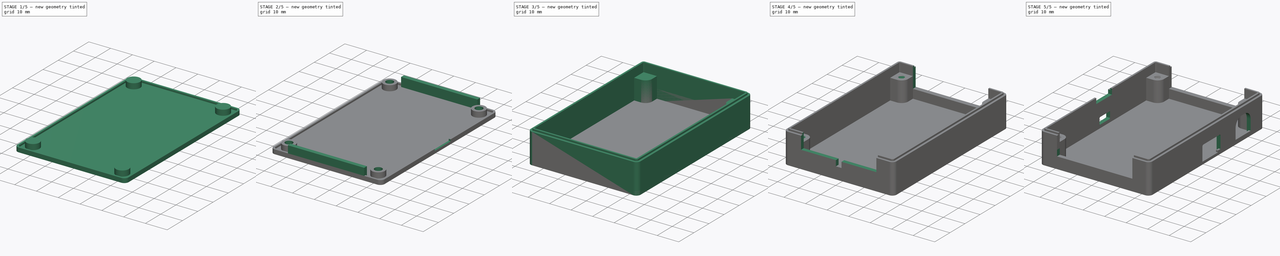
[diagram: build sequence overview — one tinted view per stage of 5, left to right]
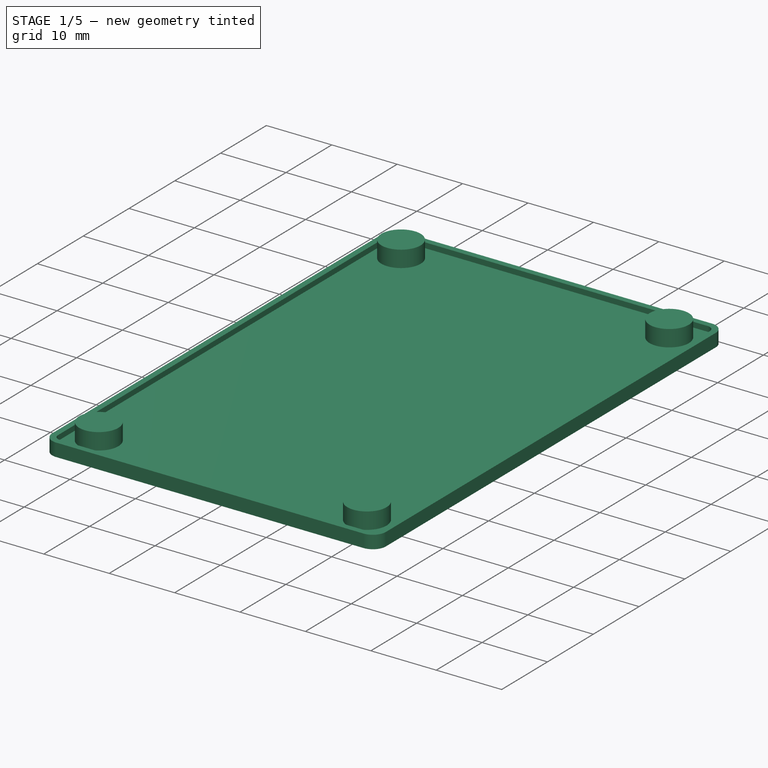
[diagram: stage 1 of 5 — iso view after this stage's code; geometry added in this stage tinted green]
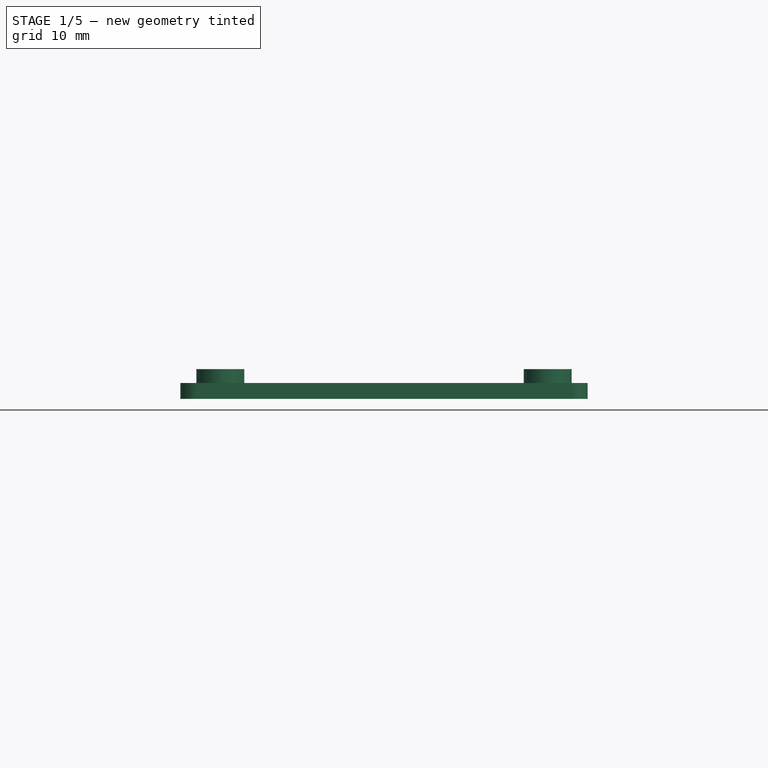
[diagram: stage 1 of 5 — front view after this stage's code; geometry added in this stage tinted green]
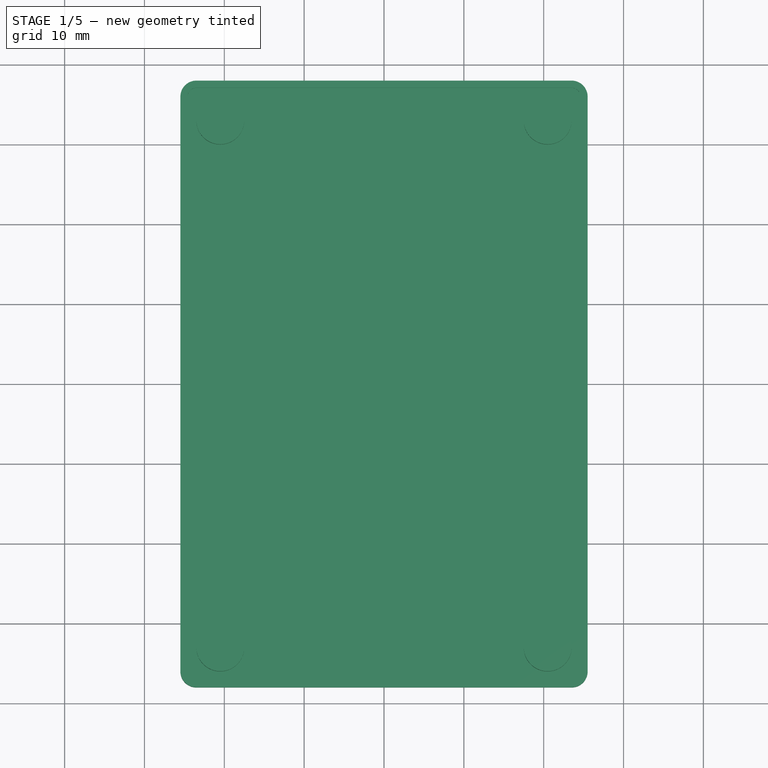
[diagram: stage 1 of 5 — top view after this stage's code; geometry added in this stage tinted green]
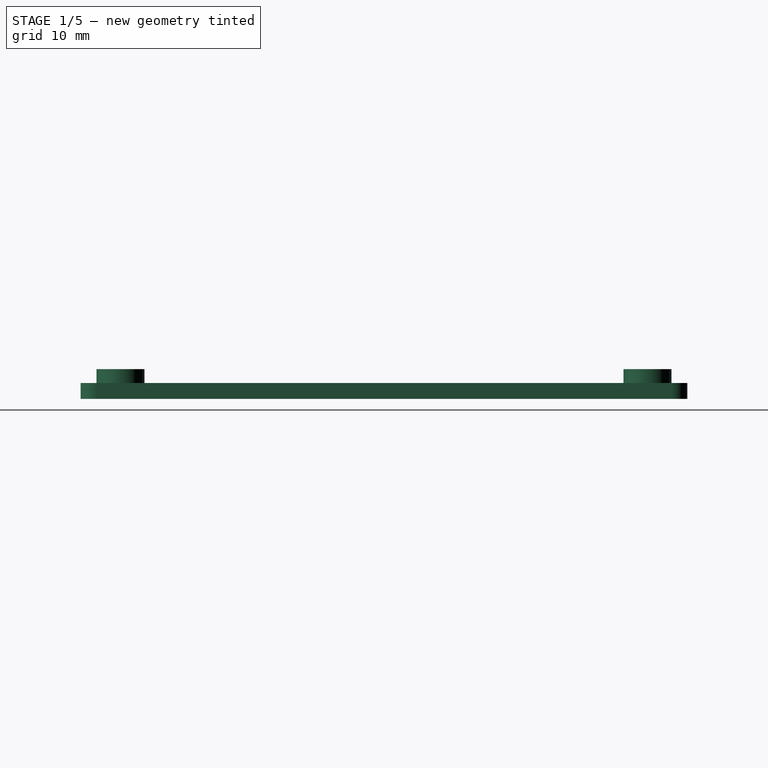
[diagram: stage 1 of 5 — right view after this stage's code; geometry added in this stage tinted green]
FCSTD DOCUMENT  (FreeCAD 1.0R39319 (Git))
Label: MB-C2_Shell
License: All rights reserved
LicenseURL: https://en.wikipedia.org/wiki/All_rights_reserved
objects: Sketcher::SketchObject×14, PartDesign::Pocket×8, PartDesign::Pad×5, PartDesign::Hole×2, PartDesign::Body×2
note: 75 computed .brp shape members not serialized (recipe doc carries the construction recipe); baked Part::Feature solids carry a one-line shape summary decoded from their .brp

FEATURE [Sketcher::SketchObject] Sketch
  ArcFitTolerance = 1e-06
  AttachmentSupport = -> [XY_Plane]
  FullyConstrained = true
  MakeInternals = false
  MapMode = 5
  sketch-geometry (10):
    g0: LineSegment StartX=-23.5 StartY=-38 StartZ=0 EndX=23.5 EndY=-38 EndZ=0
    g1: LineSegment StartX=25.5 StartY=-36 StartZ=0 EndX=25.5 EndY=36 EndZ=0
    g2: LineSegment StartX=23.5 StartY=38 StartZ=0 EndX=-23.5 EndY=38 EndZ=0
    g3: LineSegment StartX=-25.5 StartY=36 StartZ=0 EndX=-25.5 EndY=-36 EndZ=0
    g4: ArcOfCircle CenterX=-23.5 CenterY=-36 CenterZ=0 NormalX=0 NormalY=0 NormalZ=1 AngleXU=0 Radius=2 StartAngle=3.14159 EndAngle=4.71239
    g5: ArcOfCircle CenterX=23.5 CenterY=-36 CenterZ=0 NormalX=0 NormalY=0 NormalZ=1 AngleXU=0 Radius=2 StartAngle=4.71239 EndAngle=6.28319
    g6: ArcOfCircle CenterX=23.5 CenterY=36 CenterZ=0 NormalX=0 NormalY=0 NormalZ=1 AngleXU=0 Radius=2 StartAngle=0 EndAngle=1.5708
    g7: ArcOfCircle CenterX=-23.5 CenterY=36 CenterZ=0 NormalX=0 NormalY=0 NormalZ=1 AngleXU=0 Radius=2 StartAngle=1.5708 EndAngle=3.14159
    g8: GeomPoint [constr] X=25.5 Y=38 Z=0
    g9: GeomPoint [constr] X=4.64e-14 Y=5.31e-14 Z=0
  constraints (22):
    c: Tangent(g0,g4) = -1.5708
    c: Tangent(g0,g5) = -1.5708
    c: Tangent(g1,g5) = -1.5708
    c: Tangent(g1,g6) = -1.5708
    c: Tangent(g2,g6) = -1.5708
    c: Tangent(g2,g7) = -1.5708
    c: Tangent(g3,g7) = -1.5708
    c: Tangent(g3,g4) = -1.5708
    c: Horizontal(g0)
    c: Horizontal(g2)
    c: Vertical(g1)
    c: Vertical(g3)
    c: Equal(g4,g5)
    c: Equal(g5,g6)
    c: Equal(g6,g7)
    c: Symmetric(g2,g0,g9)
    c: PointOnObject(g8,g1)
    c: PointOnObject(g8,g2)
    c: Distance(g1,g3) = 51
    c: Distance(g0,g2) = 76
    c: Radius(g5) = 2
    c: Coincident(g9,g-1)
FEATURE [PartDesign::Pad] Pad
  Direction = (0,0,1)
  Length = 1.2
  Length2 = 10
  Profile = -> Sketch
  ReferenceAxis = -> Sketch [N_Axis]
  Refine = true
  Suppressed = false
  Type = 0
FEATURE [Sketcher::SketchObject] Sketch001
  ArcFitTolerance = 1e-06
  AttachmentSupport = -> [Pad]
  FullyConstrained = true
  MakeInternals = false
  MapMode = 5
  Placement = pos=(0,0,1.2) rot=(0,0,1;0rad)
  sketch-geometry (18):
    g0: LineSegment StartX=-23.5 StartY=-38 StartZ=0 EndX=23.5 EndY=-38 EndZ=0
    g1: LineSegment StartX=25.5 StartY=-36 StartZ=0 EndX=25.5 EndY=36 EndZ=0
    g2: LineSegment StartX=23.5 StartY=38 StartZ=0 EndX=-23.5 EndY=38 EndZ=0
    g3: LineSegment StartX=-25.5 StartY=36 StartZ=0 EndX=-25.5 EndY=-36 EndZ=0
    g4: ArcOfCircle CenterX=-23.5 CenterY=-36 CenterZ=0 NormalX=0 NormalY=0 NormalZ=1 AngleXU=0 Radius=2 StartAngle=3.14159 EndAngle=4.71239
    g5: ArcOfCircle CenterX=23.5 CenterY=-36 CenterZ=0 NormalX=0 NormalY=0 NormalZ=1 AngleXU=0 Radius=2 StartAngle=4.71239 EndAngle=6.28319
    g6: ArcOfCircle CenterX=23.5 CenterY=36 CenterZ=0 NormalX=0 NormalY=0 NormalZ=1 AngleXU=0 Radius=2 StartAngle=0 EndAngle=1.5708
    g7: ArcOfCircle CenterX=-23.5 CenterY=36 CenterZ=0 NormalX=0 NormalY=0 NormalZ=1 AngleXU=0 Radius=2 StartAngle=1.5708 EndAngle=3.14159
    g8: LineSegment StartX=-23.5 StartY=-37.1 StartZ=0 EndX=23.5 EndY=-37.1 EndZ=0
    g9: LineSegment StartX=24.6 StartY=-36 StartZ=0 EndX=24.6 EndY=36 EndZ=0
    g10: LineSegment StartX=23.5 StartY=37.1 StartZ=0 EndX=-23.5 EndY=37.1 EndZ=0
    g11: LineSegment StartX=-24.6 StartY=36 StartZ=0 EndX=-24.6 EndY=-36 EndZ=0
    g12: ArcOfCircle CenterX=-23.5 CenterY=-36 CenterZ=0 NormalX=0 NormalY=0 NormalZ=1 AngleXU=0 Radius=1.1 StartAngle=3.14159 EndAngle=4.71239
    g13: ArcOfCircle CenterX=23.5 CenterY=-36 CenterZ=0 NormalX=0 NormalY=0 NormalZ=1 AngleXU=0 Radius=1.1 StartAngle=4.71239 EndAngle=6.28319
    g14: ArcOfCircle CenterX=23.5 CenterY=36 CenterZ=0 NormalX=0 NormalY=0 NormalZ=1 AngleXU=0 Radius=1.1 StartAngle=0 EndAngle=1.5708
    g15: ArcOfCircle CenterX=-23.5 CenterY=36 CenterZ=0 NormalX=0 NormalY=0 NormalZ=1 AngleXU=0 Radius=1.1 StartAngle=1.5708 EndAngle=3.14159
    g16: GeomPoint [constr] X=25.5 Y=38 Z=0
    g17: GeomPoint [constr] X=0 Y=0 Z=0
  constraints (38):
    c: Tangent(g0,g4) = -1.5708
    c: Tangent(g0,g5) = -1.5708
    c: Tangent(g1,g5) = -1.5708
    c: Tangent(g1,g6) = -1.5708
    c: Tangent(g2,g6) = -1.5708
    c: Tangent(g2,g7) = -1.5708
    c: Tangent(g3,g7) = -1.5708
    c: Tangent(g3,g4) = -1.5708
    c: Horizontal(g0)
    c: Horizontal(g2)
    c: Vertical(g1)
    c: Vertical(g3)
    c: Equal(g4,g5)
    c: Equal(g5,g6)
    c: Equal(g6,g7)
    c: Tangent(g8,g12) = -1.5708
    c: Tangent(g8,g13) = -1.5708
    c: Tangent(g9,g13) = -1.5708
    c: Tangent(g9,g14) = -1.5708
    c: Tangent(g10,g14) = -1.5708
    c: Tangent(g10,g15) = -1.5708
    c: Tangent(g11,g15) = -1.5708
    c: Tangent(g11,g12) = -1.5708
    c: Coincident(g4,g12)
    c: Coincident(g5,g13)
    c: Coincident(g6,g14)
    c: Coincident(g7,g15)
    c: Horizontal(g8)
    c: Horizontal(g10)
    c: Vertical(g9)
    c: Symmetric(g2,g0,g17)
    c: PointOnObject(g16,g1)
    c: PointOnObject(g16,g2)
    c: Distance(g1,g3) = 51
    c: Distance(g0,g2) = 76
    c: Radius(g5) = 2
    c: Distance(g8,g0) = 0.9
    c: Coincident(g17,g-1)
FEATURE [PartDesign::Pad] Pad001
  BaseFeature = -> Pad
  Direction = (0,0,1)
  Length = 0.8
  Length2 = 10
  Profile = -> Sketch001
  ReferenceAxis = -> Sketch001 [N_Axis]
  Refine = true
  Suppressed = false
  Type = 0
FEATURE [Sketcher::SketchObject] Sketch002
  ArcFitTolerance = 1e-06
  AttachmentSupport = -> [Pad001]
  FullyConstrained = false
  MakeInternals = false
  MapMode = 5
  Placement = pos=(0,0,1.2) rot=(0,0,1;0rad)
  sketch-geometry (9):
    g0: LineSegment [constr] StartX=-20.5 StartY=-33 StartZ=0 EndX=20.5 EndY=-33 EndZ=0
    g1: LineSegment [constr] StartX=20.5 StartY=-33 StartZ=0 EndX=20.5 EndY=33 EndZ=0
    g2: LineSegment [constr] StartX=20.5 StartY=33 StartZ=0 EndX=-20.5 EndY=33 EndZ=0
    g3: LineSegment [constr] StartX=-20.5 StartY=33 StartZ=0 EndX=-20.5 EndY=-33 EndZ=0
    g4: GeomPoint [constr] X=0 Y=0 Z=0
    g5: Circle CenterX=-20.5 CenterY=33 CenterZ=0 NormalX=0 NormalY=0 NormalZ=1 AngleXU=0 Radius=3
    g6: Circle CenterX=20.5 CenterY=33 CenterZ=0 NormalX=0 NormalY=0 NormalZ=1 AngleXU=0 Radius=3
    g7: Circle CenterX=-20.5 CenterY=-33 CenterZ=0 NormalX=0 NormalY=0 NormalZ=1 AngleXU=0 Radius=3
    g8: Circle CenterX=20.5 CenterY=-33 CenterZ=0 NormalX=0 NormalY=0 NormalZ=1 AngleXU=0 Radius=3
  constraints (17):
    c: Coincident(g0,g1)
    c: Coincident(g1,g2)
    c: Coincident(g2,g3)
    c: Coincident(g3,g0)
    c: Horizontal(g0)
    c: Horizontal(g2)
    c: Vertical(g1)
    c: Vertical(g3)
    c: Symmetric(g2,g0,g4)
    c: Distance(g1,g3) = 41
    c: Distance(g0,g2) = 66
    c: Coincident(g4,g-1)
    c: Diameter(g5) = 6
    c: Coincident(g5,g2)
    c: Diameter(g6) = 6
    c: Diameter(g7) = 6
    c: Diameter(g8) = 6
FEATURE [PartDesign::Pad] Pad002
  BaseFeature = -> Pad001
  Direction = (0,0,1)
  Length = 2.54
  Length2 = 10
  Profile = -> Sketch002
  ReferenceAxis = -> Sketch002 [N_Axis]
  Refine = true
  Suppressed = false
  Type = 0
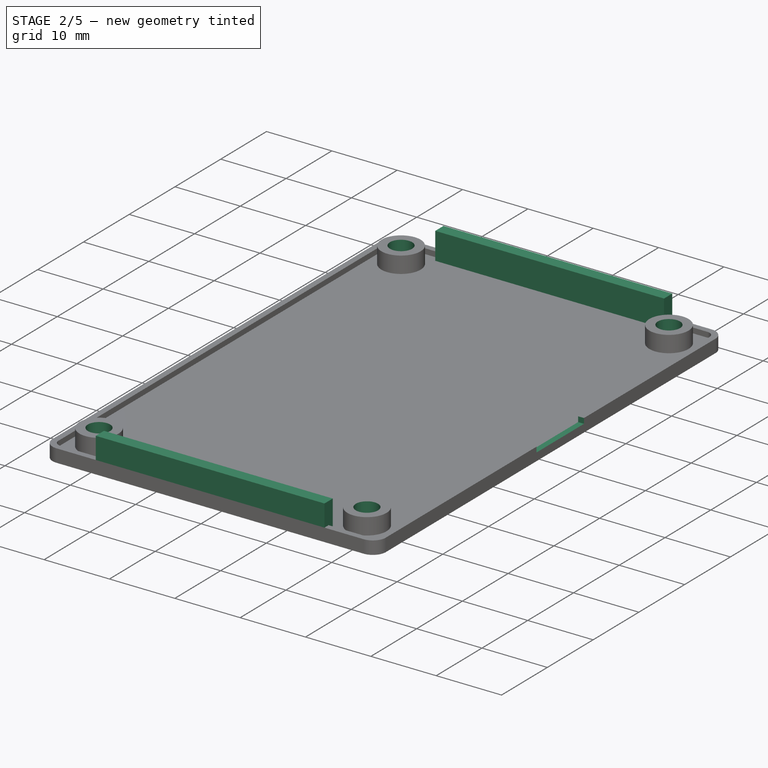
[diagram: stage 2 of 5 — iso view after this stage's code; geometry added in this stage tinted green]
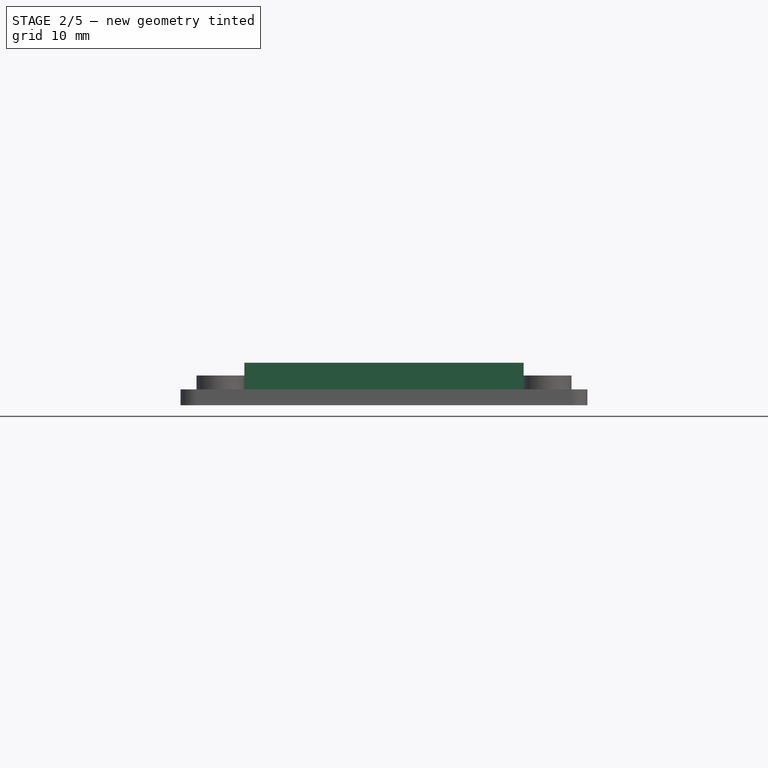
[diagram: stage 2 of 5 — front view after this stage's code; geometry added in this stage tinted green]
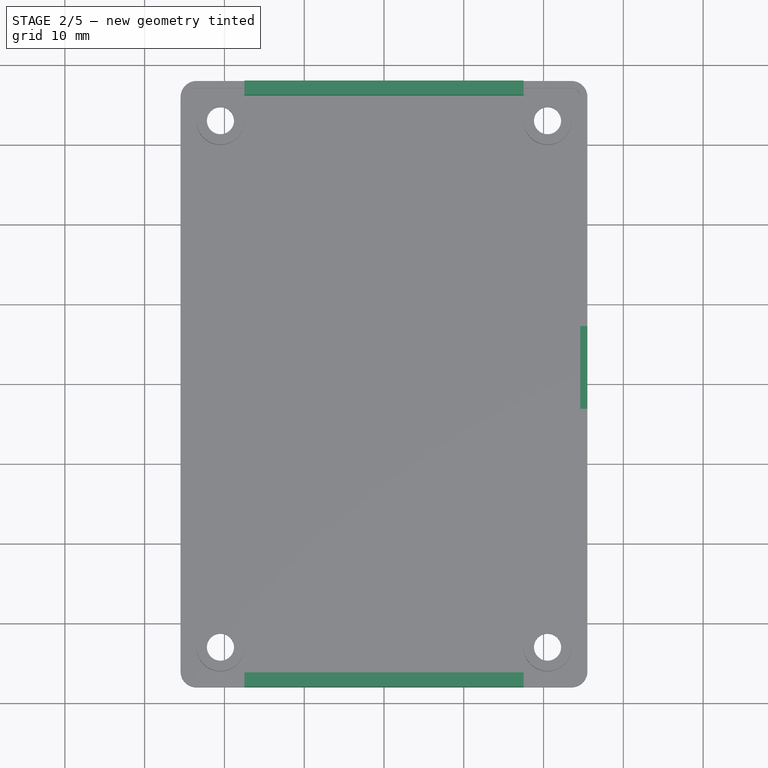
[diagram: stage 2 of 5 — top view after this stage's code; geometry added in this stage tinted green]
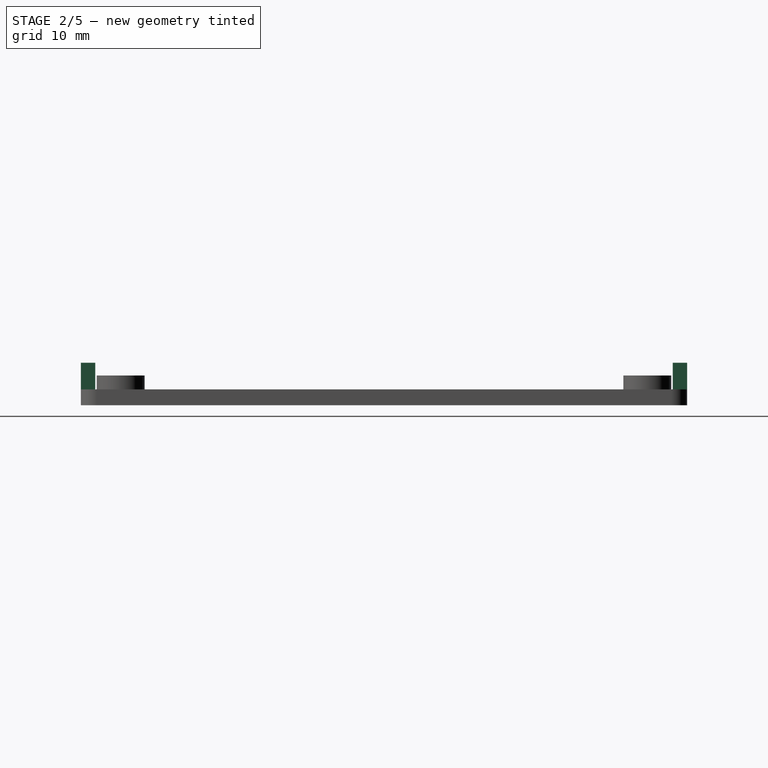
[diagram: stage 2 of 5 — right view after this stage's code; geometry added in this stage tinted green]
FEATURE [Sketcher::SketchObject] Sketch003
  ArcFitTolerance = 1e-06
  AttachmentSupport = -> [Pad002]
  ExternalGeometry = -> [Pad002]
  FullyConstrained = false
  MakeInternals = false
  MapMode = 5
  Placement = pos=(0,0,1.2) rot=(0,0,1;0rad)
  sketch-geometry (13):
    g0: LineSegment [constr] StartX=-17.5 StartY=-40 StartZ=0 EndX=17.5 EndY=-40 EndZ=0
    g1: LineSegment [constr] StartX=17.5 StartY=-40 StartZ=0 EndX=17.5 EndY=-36 EndZ=0
    g2: LineSegment [constr] StartX=17.5 StartY=-36 StartZ=0 EndX=-17.5 EndY=-36 EndZ=0
    g3: LineSegment [constr] StartX=-17.5 StartY=-36 StartZ=0 EndX=-17.5 EndY=-40 EndZ=0
    g4: GeomPoint [constr] X=0 Y=-38 Z=0
    g5: LineSegment StartX=-17.5 StartY=-38 StartZ=0 EndX=17.5 EndY=-38 EndZ=0
    g6: LineSegment StartX=17.5 StartY=-38 StartZ=0 EndX=17.5 EndY=-36.2 EndZ=0
    g7: LineSegment StartX=17.5 StartY=-36.2 StartZ=0 EndX=-17.5 EndY=-36.2 EndZ=0
    g8: LineSegment StartX=-17.5 StartY=-36.2 StartZ=0 EndX=-17.5 EndY=-38 EndZ=0
    g9: LineSegment StartX=-17.5 StartY=38 StartZ=0 EndX=17.5 EndY=38 EndZ=0
    g10: LineSegment StartX=17.5 StartY=38 StartZ=0 EndX=17.5 EndY=36.2 EndZ=0
    g11: LineSegment StartX=17.5 StartY=36.2 StartZ=0 EndX=-17.5 EndY=36.2 EndZ=0
    g12: LineSegment StartX=-17.5 StartY=36.2 StartZ=0 EndX=-17.5 EndY=38 EndZ=0
  constraints (31):
    c: Coincident(g0,g1)
    c: Coincident(g1,g2)
    c: Coincident(g2,g3)
    c: Coincident(g3,g0)
    c: Horizontal(g0)
    c: Horizontal(g2)
    c: Vertical(g1)
    c: Vertical(g3)
    c: Symmetric(g2,g0,g4)
    c: Distance(g1,g3) = 35
    c: Symmetric(g-3,g-3,g4)
    c: Coincident(g5,g6)
    c: Coincident(g6,g7)
    c: Coincident(g7,g8)
    c: Coincident(g8,g5)
    c: Horizontal(g5)
    c: Horizontal(g7)
    c: Vertical(g6)
    c: Vertical(g8)
    c: Distance(g5,g7) = 1.8
    c: Symmetric(g3,g3,g5)
    c: PointOnObject(g6,g1)
    c: Coincident(g9,g10)
    c: Coincident(g10,g11)
    c: Coincident(g11,g12)
    c: Coincident(g12,g9)
    c: Horizontal(g9)
    c: Horizontal(g11)
    c: Vertical(g10)
    c: Vertical(g12)
    c: Distance(g9,g11) = 1.8
FEATURE [PartDesign::Pad] Pad003
  BaseFeature = -> Pad002
  Direction = (0,0,1)
  Length = 4.14
  Length2 = 10
  Profile = -> Sketch003
  ReferenceAxis = -> Sketch003 [N_Axis]
  Refine = true
  Suppressed = false
  Type = 0
FEATURE [Sketcher::SketchObject] Sketch004
  ArcFitTolerance = 1e-06
  AttachmentSupport = -> [Pad003]
  FullyConstrained = false
  MakeInternals = false
  MapMode = 5
  Placement = pos=(0,0,0) rot=(1,0,0;3.14159rad)
  sketch-geometry (9):
    g0: LineSegment [constr] StartX=-20.5 StartY=-33 StartZ=0 EndX=20.5 EndY=-33 EndZ=0
    g1: LineSegment [constr] StartX=20.5 StartY=-33 StartZ=0 EndX=20.5 EndY=33 EndZ=0
    g2: LineSegment [constr] StartX=20.5 StartY=33 StartZ=0 EndX=-20.5 EndY=33 EndZ=0
    g3: LineSegment [constr] StartX=-20.5 StartY=33 StartZ=0 EndX=-20.5 EndY=-33 EndZ=0
    g4: GeomPoint [constr] X=0 Y=0 Z=0
    g5: Circle CenterX=-20.5 CenterY=33 CenterZ=0 NormalX=0 NormalY=0 NormalZ=1 AngleXU=0 Radius=1.6
    g6: Circle CenterX=20.5 CenterY=33 CenterZ=0 NormalX=0 NormalY=0 NormalZ=1 AngleXU=0 Radius=1.6
    g7: Circle CenterX=-20.5 CenterY=-33 CenterZ=0 NormalX=0 NormalY=0 NormalZ=1 AngleXU=0 Radius=1.6
    g8: Circle CenterX=20.5 CenterY=-33 CenterZ=0 NormalX=0 NormalY=0 NormalZ=1 AngleXU=0 Radius=1.6
  constraints (17):
    c: Coincident(g0,g1)
    c: Coincident(g1,g2)
    c: Coincident(g2,g3)
    c: Coincident(g3,g0)
    c: Horizontal(g0)
    c: Horizontal(g2)
    c: Vertical(g1)
    c: Vertical(g3)
    c: Symmetric(g2,g0,g4)
    c: Distance(g1,g3) = 41
    c: Distance(g0,g2) = 66
    c: Coincident(g4,g-1)
    c: Diameter(g5) = 3.2
    c: Coincident(g5,g2)
    c: Diameter(g6) = 3.2
    c: Diameter(g7) = 3.2
    c: Diameter(g8) = 3.2
FEATURE [PartDesign::Hole] Hole
  BaseFeature = -> Pad003
  CustomThreadClearance = 0
  Depth = 25
  DepthType = 0
  Diameter = 3.4
  DrillForDepth = false
  DrillPoint = 1
  DrillPointAngle = 118
  HoleCutCountersinkAngle = 90
  HoleCutCustomValues = false
  HoleCutDepth = 0.5
  HoleCutDiameter = 6.1
  HoleCutType = 3
  ModelThread = false
  Profile = -> Sketch004
  Refine = true
  Suppressed = false
  Tapered = false
  TaperedAngle = 90
  ThreadClass = 0
  ThreadDepth = 25
  ThreadDepthType = 0
  ThreadDirection = 0
  ThreadFit = 0
  ThreadSize = 9
  ThreadType = 1
  Threaded = false
  UseCustomThreadClearance = false
FEATURE [PartDesign::Body] Body001  label="02_Main_body"
  AllowCompound = false
  Group = -> [Sketch005,Pad004,Sketch006,Pocket,Sketch007,Pocket001,Sketch008,Pocket002,Sketch009,Pocket003,Sketch010,Hole001,Sketch011,Pocket004,Pocket005,Sketch012,Pocket006]
  Origin = -> Origin001
  Placement = pos=(0,0,30) rot=(0,1,0;3.14159rad)
  Tip = -> Pocket006
FEATURE [Sketcher::SketchObject] Sketch013
  ArcFitTolerance = 1e-06
  AttachmentSupport = -> [Hole]
  ExternalGeometry = -> [Hole]
  FullyConstrained = true
  MakeInternals = false
  MapMode = 5
  Placement = pos=(25.5,0,-1.395e-13) rot=(0.57735,0.57735,0.57735;2.0944rad)
  sketch-geometry (5):
    g0: GeomPoint [constr] X=7.29 Y=2 Z=0
    g1: LineSegment StartX=7.29 StartY=2 StartZ=0 EndX=-3.09 EndY=2 EndZ=0
    g2: LineSegment StartX=-3.09 StartY=2 StartZ=0 EndX=-3.09 EndY=1.2 EndZ=0
    g3: LineSegment StartX=-3.09 StartY=1.2 StartZ=0 EndX=7.29 EndY=1.2 EndZ=0
    g4: LineSegment StartX=7.29 StartY=1.2 StartZ=0 EndX=7.29 EndY=2 EndZ=0
  constraints (13):
    c: PointOnObject(g0,g-3)
    c: DistanceX(g0,g-3) = 28.71
    c: Coincident(g1,g2)
    c: Coincident(g2,g3)
    c: Coincident(g3,g4)
    c: Coincident(g4,g1)
    c: Horizontal(g1)
    c: Horizontal(g3)
    c: Vertical(g2)
    c: Vertical(g4)
    c: Distance(g2,g4) = 10.38
    c: Distance(g1,g3) = 0.8
    c: Coincident(g1,g0)
FEATURE [PartDesign::Pocket] Pocket007
  BaseFeature = -> Hole
  Direction = (-1,-1e-16,5.4e-15)
  Length = 5
  Length2 = 5
  Profile = -> Sketch013
  ReferenceAxis = -> Sketch013 [N_Axis]
  Refine = true
  Suppressed = false
  Type = 0
FEATURE [PartDesign::Body] Body  label="01_Bottom_panel"
  AllowCompound = false
  Group = -> [Sketch,Pad,Sketch001,Pad001,Sketch002,Pad002,Sketch003,Pad003,Sketch004,Hole,Sketch013,Pocket007]
  Origin = -> Origin
  Tip = -> Pocket007
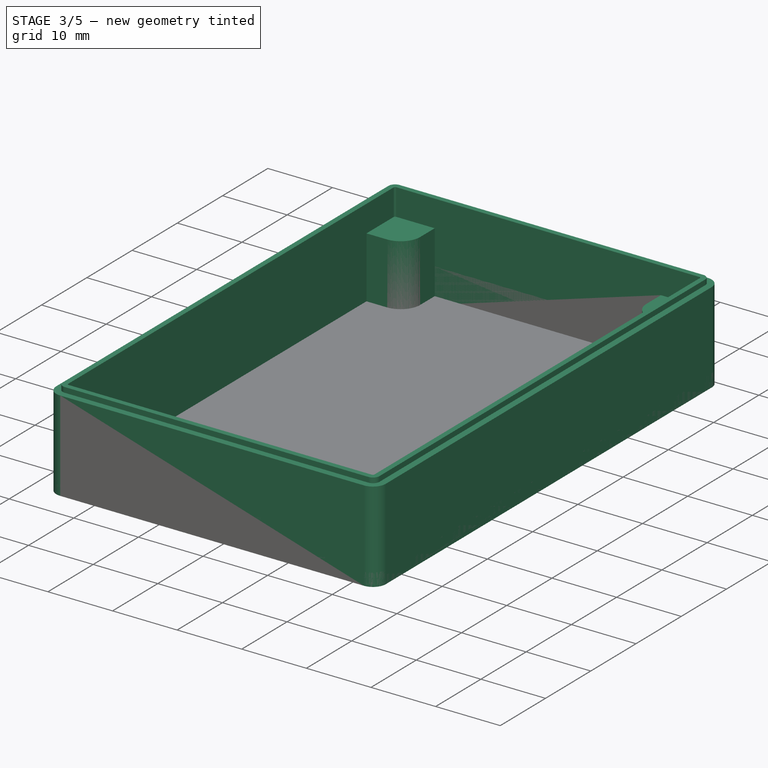
[diagram: stage 3 of 5 — iso view after this stage's code; geometry added in this stage tinted green]
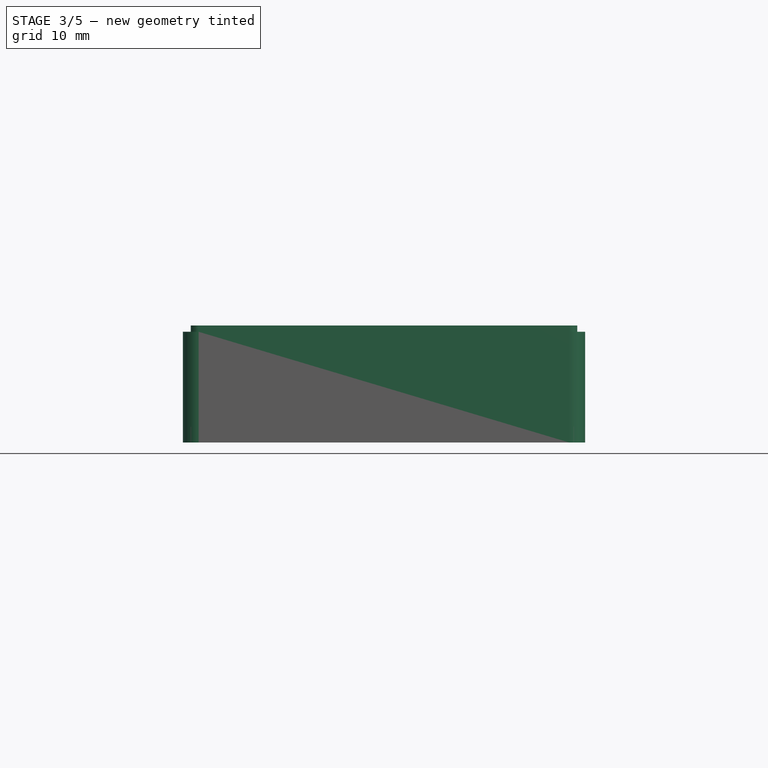
[diagram: stage 3 of 5 — front view after this stage's code; geometry added in this stage tinted green]
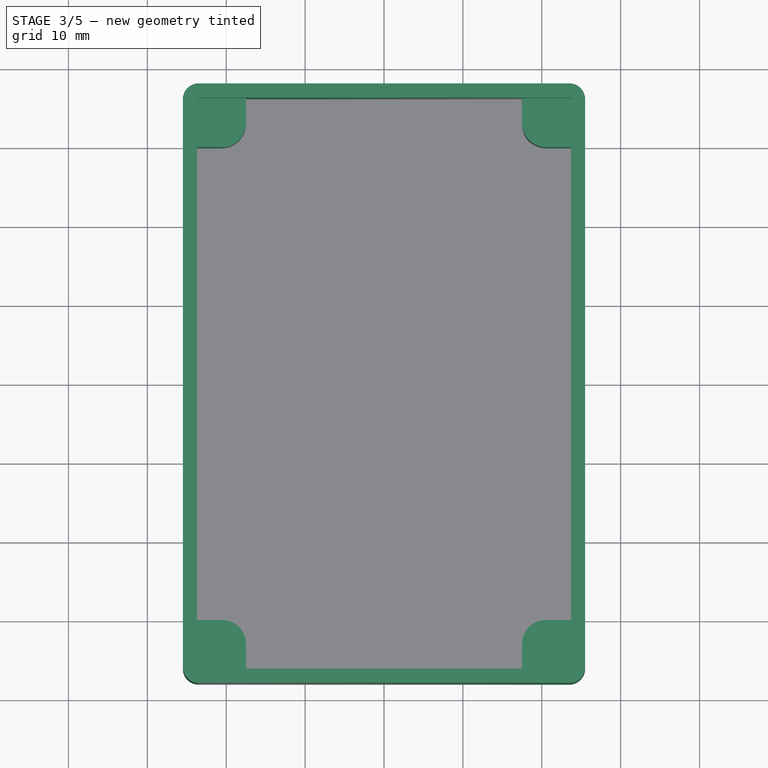
[diagram: stage 3 of 5 — top view after this stage's code; geometry added in this stage tinted green]
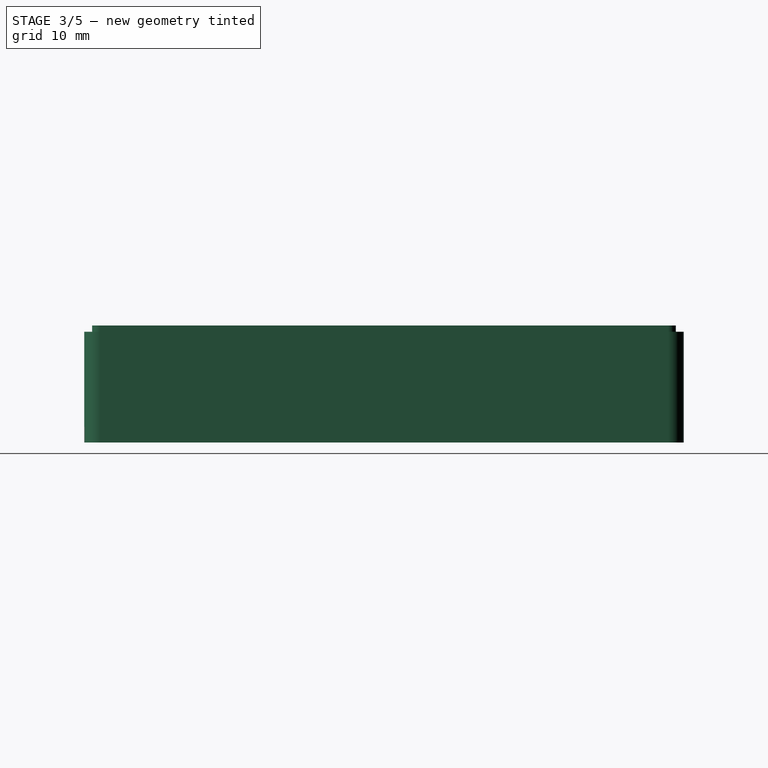
[diagram: stage 3 of 5 — right view after this stage's code; geometry added in this stage tinted green]
FEATURE [Sketcher::SketchObject] Sketch005
  ArcFitTolerance = 1e-06
  AttachmentSupport = -> [XY_Plane001]
  FullyConstrained = false
  MakeInternals = false
  MapMode = 5
  sketch-geometry (45):
    g0: LineSegment StartX=-23.5 StartY=-38 StartZ=0 EndX=23.5 EndY=-38 EndZ=0
    g1: LineSegment StartX=25.5 StartY=-36 StartZ=0 EndX=25.5 EndY=36 EndZ=0
    g2: LineSegment StartX=23.5 StartY=38 StartZ=0 EndX=-23.5 EndY=38 EndZ=0
    g3: LineSegment StartX=-25.5 StartY=36 StartZ=0 EndX=-25.5 EndY=-36 EndZ=0
    g4: ArcOfCircle CenterX=-23.5 CenterY=-36 CenterZ=0 NormalX=0 NormalY=0 NormalZ=1 AngleXU=0 Radius=2 StartAngle=3.14159 EndAngle=4.71239
    g5: ArcOfCircle CenterX=23.5 CenterY=-36 CenterZ=0 NormalX=0 NormalY=0 NormalZ=1 AngleXU=0 Radius=2 StartAngle=4.71239 EndAngle=6.28319
    g6: ArcOfCircle CenterX=23.5 CenterY=36 CenterZ=0 NormalX=0 NormalY=0 NormalZ=1 AngleXU=0 Radius=2 StartAngle=0 EndAngle=1.5708
    g7: ArcOfCircle CenterX=-23.5 CenterY=36 CenterZ=0 NormalX=0 NormalY=0 NormalZ=1 AngleXU=0 Radius=2 StartAngle=1.5708 EndAngle=3.14159
    g8: LineSegment StartX=-23.5 StartY=-36.2 StartZ=0 EndX=23.5 EndY=-36.2 EndZ=0
    g9: LineSegment StartX=23.7 StartY=-36 StartZ=0 EndX=23.7 EndY=36 EndZ=0
    g10: LineSegment StartX=23.5 StartY=36.2 StartZ=0 EndX=-23.5 EndY=36.2 EndZ=0
    g11: LineSegment StartX=-23.7 StartY=36 StartZ=0 EndX=-23.7 EndY=-36 EndZ=0
    g12: ArcOfCircle CenterX=-23.5 CenterY=-36 CenterZ=0 NormalX=0 NormalY=0 NormalZ=1 AngleXU=0 Radius=0.2 StartAngle=3.14159 EndAngle=4.71239
    g13: ArcOfCircle CenterX=23.5 CenterY=-36 CenterZ=0 NormalX=0 NormalY=0 NormalZ=1 AngleXU=0 Radius=0.2 StartAngle=4.71239 EndAngle=6.28319
    g14: ArcOfCircle CenterX=23.5 CenterY=36 CenterZ=0 NormalX=0 NormalY=0 NormalZ=1 AngleXU=0 Radius=0.2 StartAngle=0 EndAngle=1.5708
    g15: ArcOfCircle CenterX=-23.5 CenterY=36 CenterZ=0 NormalX=0 NormalY=0 NormalZ=1 AngleXU=0 Radius=0.2 StartAngle=1.5708 EndAngle=3.14159
    g16: GeomPoint [constr] X=25.5 Y=38 Z=0
    g17: GeomPoint [constr] X=0 Y=0 Z=0
    g18: LineSegment [constr] StartX=-20.5 StartY=-33 StartZ=0 EndX=20.5 EndY=-33 EndZ=0
    g19: LineSegment [constr] StartX=20.5 StartY=-33 StartZ=0 EndX=20.5 EndY=33 EndZ=0
    g20: LineSegment [constr] StartX=20.5 StartY=33 StartZ=0 EndX=-20.5 EndY=33 EndZ=0
    g21: LineSegment [constr] StartX=-20.5 StartY=33 StartZ=0 EndX=-20.5 EndY=-33 EndZ=0
    g22: GeomPoint [constr] X=0 Y=0 Z=0
    g23: Circle [constr] CenterX=-20.5 CenterY=33 CenterZ=0 NormalX=0 NormalY=0 NormalZ=1 AngleXU=0 Radius=1.6
    g24: Circle [constr] CenterX=-20.5 CenterY=33 CenterZ=0 NormalX=0 NormalY=0 NormalZ=1 AngleXU=0 Radius=3
    g25: LineSegment StartX=-20.5 StartY=29.9726 StartZ=0 EndX=-23.7 EndY=29.9726 EndZ=0
    g26: LineSegment StartX=-23.7 StartY=29.9726 StartZ=0 EndX=-23.7 EndY=36.2 EndZ=0
    g27: LineSegment StartX=-23.7 StartY=36.2 StartZ=0 EndX=-17.5 EndY=36.2 EndZ=0
    g28: LineSegment StartX=-17.5 StartY=36.2 StartZ=0 EndX=-17.5 EndY=33 EndZ=0
    g29: ArcOfCircle CenterX=-20.5276 CenterY=33 CenterZ=0 NormalX=0 NormalY=0 NormalZ=1 AngleXU=0 Radius=3.02755 StartAngle=4.72149 EndAngle=6.28319
    g30: LineSegment StartX=20.5 StartY=29.9726 StartZ=0 EndX=23.7 EndY=29.9726 EndZ=0
    g31: LineSegment StartX=23.7 StartY=29.9726 StartZ=0 EndX=23.7 EndY=36.2 EndZ=0
    g32: LineSegment StartX=23.7 StartY=36.2 StartZ=0 EndX=17.5 EndY=36.2 EndZ=0
    g33: LineSegment StartX=17.5 StartY=36.2 StartZ=0 EndX=17.5 EndY=33 EndZ=0
    g34: ArcOfCircle CenterX=20.5276 CenterY=33 CenterZ=0 NormalX=0 NormalY=0 NormalZ=1 AngleXU=0 Radius=3.02755 StartAngle=3.14159 EndAngle=4.70329
    g35: LineSegment StartX=-20.5 StartY=-29.9726 StartZ=0 EndX=-23.7 EndY=-29.9726 EndZ=0
    g36: LineSegment StartX=-23.7 StartY=-29.9726 StartZ=0 EndX=-23.7 EndY=-36.2 EndZ=0
    g37: LineSegment StartX=-23.7 StartY=-36.2 StartZ=0 EndX=-17.5 EndY=-36.2 EndZ=0
    g38: LineSegment StartX=-17.5 StartY=-36.2 StartZ=0 EndX=-17.5 EndY=-33 EndZ=0
    g39: ArcOfCircle CenterX=-20.5276 CenterY=-33 CenterZ=0 NormalX=0 NormalY=0 NormalZ=1 AngleXU=0 Radius=3.02755 StartAngle=0 EndAngle=1.5617
    g40: LineSegment StartX=20.5 StartY=-29.9726 StartZ=0 EndX=23.7 EndY=-29.9726 EndZ=0
    g41: LineSegment StartX=23.7 StartY=-29.9726 StartZ=0 EndX=23.7 EndY=-36.2 EndZ=0
    g42: LineSegment StartX=23.7 StartY=-36.2 StartZ=0 EndX=17.5 EndY=-36.2 EndZ=0
    g43: LineSegment StartX=17.5 StartY=-36.2 StartZ=0 EndX=17.5 EndY=-33 EndZ=0
    g44: ArcOfCircle CenterX=20.5276 CenterY=-33 CenterZ=0 NormalX=0 NormalY=0 NormalZ=1 AngleXU=0 Radius=3.02755 StartAngle=1.5799 EndAngle=3.14159
  constraints (82):
    c: Tangent(g0,g4) = -1.5708
    c: Tangent(g0,g5) = -1.5708
    c: Tangent(g1,g5) = -1.5708
    c: Tangent(g1,g6) = -1.5708
    c: Tangent(g2,g6) = -1.5708
    c: Tangent(g2,g7) = -1.5708
    c: Tangent(g3,g7) = -1.5708
    c: Tangent(g3,g4) = -1.5708
    c: Horizontal(g0)
    c: Horizontal(g2)
    c: Vertical(g1)
    c: Vertical(g3)
    c: Equal(g4,g5)
    c: Equal(g5,g6)
    c: Equal(g6,g7)
    c: Tangent(g8,g12) = -1.5708
    c: Tangent(g8,g13) = -1.5708
    c: Tangent(g9,g13) = -1.5708
    c: Tangent(g9,g14) = -1.5708
    c: Tangent(g10,g14) = -1.5708
    c: Tangent(g10,g15) = -1.5708
    c: Tangent(g11,g15) = -1.5708
    c: Tangent(g11,g12) = -1.5708
    c: Coincident(g4,g12)
    c: Coincident(g5,g13)
    c: Coincident(g6,g14)
    c: Coincident(g7,g15)
    c: Horizontal(g8)
    c: Horizontal(g10)
    c: Vertical(g9)
    c: Symmetric(g2,g0,g17)
    c: PointOnObject(g16,g1)
    c: PointOnObject(g16,g2)
    c: Distance(g1,g3) = 51
    c: Distance(g0,g2) = 76
    c: Radius(g5) = 2
    c: Distance(g8,g0) = 1.8
    c: Coincident(g17,g-1)
    c: Coincident(g18,g19)
    c: Coincident(g19,g20)
    c: Coincident(g20,g21)
    c: Coincident(g21,g18)
    c: Horizontal(g18)
    c: Horizontal(g20)
    c: Vertical(g19)
    c: Vertical(g21)
    c: Symmetric(g20,g18,g22)
    c: Distance(g19,g21) = 41
    c: Distance(g18,g20) = 66
    c: Coincident(g22,g17)
    c: Diameter(g23) = 3.2
    c: Coincident(g23,g20)
    c: Diameter(g24) = 6
    c: Coincident(g24,g20)
    c: PointOnObject(g25,g21)
    c: PointOnObject(g25,g11)
    c: Horizontal(g25)
    c: Perpendicular(g25,g26) = 4.71239
    c: Perpendicular(g26,g27) = 4.71239
    c: Tangent(g27,g15)
    c: Perpendicular(g27,g28) = 4.71239
    c: PointOnObject(g28,g20)
    c: Tangent(g28,g29) = 1.5708
    c: Coincident(g29,g25)
    c: Horizontal(g30)
    c: Perpendicular(g30,g31) = 1.5708
    c: Perpendicular(g31,g32) = 1.5708
    c: Perpendicular(g32,g33) = 1.5708
    c: Tangent(g33,g34) = -1.5708
    c: Coincident(g34,g30)
    c: Horizontal(g35)
    c: Perpendicular(g35,g36) = 1.5708
    c: Perpendicular(g36,g37) = 1.5708
    c: Perpendicular(g37,g38) = 1.5708
    c: Tangent(g38,g39) = -1.5708
    c: Coincident(g39,g35)
    c: Horizontal(g40)
    c: Perpendicular(g40,g41) = 4.71239
    c: Perpendicular(g41,g42) = 4.71239
    c: Perpendicular(g42,g43) = 4.71239
    c: Tangent(g43,g44) = 1.5708
    c: Coincident(g44,g40)
FEATURE [PartDesign::Pad] Pad004
  Direction = (0,0,1)
  Length = 14.84
  Length2 = 10
  Profile = -> Sketch005
  ReferenceAxis = -> Sketch005 [N_Axis]
  Refine = true
  Suppressed = false
  Type = 0
FEATURE [Sketcher::SketchObject] Sketch006
  ArcFitTolerance = 1e-06
  AttachmentSupport = -> [Pad004]
  FullyConstrained = true
  MakeInternals = false
  MapMode = 5
  Placement = pos=(0,0,14.84) rot=(0,0,1;0rad)
  sketch-geometry (10):
    g0: LineSegment StartX=-23.45 StartY=-36.2 StartZ=0 EndX=23.45 EndY=-36.2 EndZ=0
    g1: LineSegment StartX=23.7 StartY=-35.95 StartZ=0 EndX=23.7 EndY=35.95 EndZ=0
    g2: LineSegment StartX=23.45 StartY=36.2 StartZ=0 EndX=-23.45 EndY=36.2 EndZ=0
    g3: LineSegment StartX=-23.7 StartY=35.95 StartZ=0 EndX=-23.7 EndY=-35.95 EndZ=0
    g4: ArcOfCircle CenterX=-23.45 CenterY=-35.95 CenterZ=0 NormalX=0 NormalY=0 NormalZ=1 AngleXU=0 Radius=0.25 StartAngle=3.14159 EndAngle=4.71239
    g5: ArcOfCircle CenterX=23.45 CenterY=-35.95 CenterZ=0 NormalX=0 NormalY=0 NormalZ=1 AngleXU=0 Radius=0.25 StartAngle=4.71239 EndAngle=6.28319
    g6: ArcOfCircle CenterX=23.45 CenterY=35.95 CenterZ=0 NormalX=0 NormalY=0 NormalZ=1 AngleXU=0 Radius=0.25 StartAngle=0 EndAngle=1.5708
    g7: ArcOfCircle CenterX=-23.45 CenterY=35.95 CenterZ=0 NormalX=0 NormalY=0 NormalZ=1 AngleXU=0 Radius=0.25 StartAngle=1.5708 EndAngle=3.14159
    g8: GeomPoint [constr] X=23.7 Y=36.2 Z=0
    g9: GeomPoint [constr] X=-6.1e-15 Y=-1.5e-15 Z=0
  constraints (22):
    c: Tangent(g0,g4) = -1.5708
    c: Tangent(g0,g5) = -1.5708
    c: Tangent(g1,g5) = -1.5708
    c: Tangent(g1,g6) = -1.5708
    c: Tangent(g2,g6) = -1.5708
    c: Tangent(g2,g7) = -1.5708
    c: Tangent(g3,g7) = -1.5708
    c: Tangent(g3,g4) = -1.5708
    c: Horizontal(g0)
    c: Horizontal(g2)
    c: Vertical(g1)
    c: Vertical(g3)
    c: Equal(g4,g5)
    c: Equal(g5,g6)
    c: Equal(g6,g7)
    c: Symmetric(g2,g0,g9)
    c: PointOnObject(g8,g1)
    c: PointOnObject(g8,g2)
    c: Distance(g1,g3) = 47.4
    c: Distance(g0,g2) = 72.4
    c: Radius(g5) = 0.25
    c: Coincident(g9,g-1)
FEATURE [PartDesign::Pocket] Pocket
  BaseFeature = -> Pad004
  Direction = (0,0,-1)
  Length = 4.14
  Length2 = 5
  Profile = -> Sketch006
  ReferenceAxis = -> Sketch006 [N_Axis]
  Refine = true
  Suppressed = false
  Type = 0
FEATURE [Sketcher::SketchObject] Sketch007
  ArcFitTolerance = 1e-06
  AttachmentSupport = -> [Pocket]
  FullyConstrained = true
  MakeInternals = false
  MapMode = 5
  Placement = pos=(0,0,14.84) rot=(0,0,1;0rad)
  sketch-geometry (18):
    g0: LineSegment StartX=-23.5 StartY=-38 StartZ=0 EndX=23.5 EndY=-38 EndZ=0
    g1: LineSegment StartX=25.5 StartY=-36 StartZ=0 EndX=25.5 EndY=36 EndZ=0
    g2: LineSegment StartX=23.5 StartY=38 StartZ=0 EndX=-23.5 EndY=38 EndZ=0
    g3: LineSegment StartX=-25.5 StartY=36 StartZ=0 EndX=-25.5 EndY=-36 EndZ=0
    g4: ArcOfCircle CenterX=-23.5 CenterY=-36 CenterZ=0 NormalX=0 NormalY=0 NormalZ=1 AngleXU=0 Radius=2 StartAngle=3.14159 EndAngle=4.71239
    g5: ArcOfCircle CenterX=23.5 CenterY=-36 CenterZ=0 NormalX=0 NormalY=0 NormalZ=1 AngleXU=0 Radius=2 StartAngle=4.71239 EndAngle=6.28319
    g6: ArcOfCircle CenterX=23.5 CenterY=36 CenterZ=0 NormalX=0 NormalY=0 NormalZ=1 AngleXU=0 Radius=2 StartAngle=0 EndAngle=1.5708
    g7: ArcOfCircle CenterX=-23.5 CenterY=36 CenterZ=0 NormalX=0 NormalY=0 NormalZ=1 AngleXU=0 Radius=2 StartAngle=1.5708 EndAngle=3.14159
    g8: LineSegment StartX=-23.5 StartY=-37 StartZ=0 EndX=23.5 EndY=-37 EndZ=0
    g9: LineSegment StartX=24.5 StartY=-36 StartZ=0 EndX=24.5 EndY=36 EndZ=0
    g10: LineSegment StartX=23.5 StartY=37 StartZ=0 EndX=-23.5 EndY=37 EndZ=0
    g11: LineSegment StartX=-24.5 StartY=36 StartZ=0 EndX=-24.5 EndY=-36 EndZ=0
    g12: ArcOfCircle CenterX=-23.5 CenterY=-36 CenterZ=0 NormalX=0 NormalY=0 NormalZ=1 AngleXU=0 Radius=1 StartAngle=3.14159 EndAngle=4.71239
    g13: ArcOfCircle CenterX=23.5 CenterY=-36 CenterZ=0 NormalX=0 NormalY=0 NormalZ=1 AngleXU=0 Radius=1 StartAngle=4.71239 EndAngle=6.28319
    g14: ArcOfCircle CenterX=23.5 CenterY=36 CenterZ=0 NormalX=0 NormalY=0 NormalZ=1 AngleXU=0 Radius=1 StartAngle=0 EndAngle=1.5708
    g15: ArcOfCircle CenterX=-23.5 CenterY=36 CenterZ=0 NormalX=0 NormalY=0 NormalZ=1 AngleXU=0 Radius=1 StartAngle=1.5708 EndAngle=3.14159
    g16: GeomPoint [constr] X=25.5 Y=38 Z=0
    g17: GeomPoint [constr] X=0 Y=0 Z=0
  constraints (38):
    c: Tangent(g0,g4) = -1.5708
    c: Tangent(g0,g5) = -1.5708
    c: Tangent(g1,g5) = -1.5708
    c: Tangent(g1,g6) = -1.5708
    c: Tangent(g2,g6) = -1.5708
    c: Tangent(g2,g7) = -1.5708
    c: Tangent(g3,g7) = -1.5708
    c: Tangent(g3,g4) = -1.5708
    c: Horizontal(g0)
    c: Horizontal(g2)
    c: Vertical(g1)
    c: Vertical(g3)
    c: Equal(g4,g5)
    c: Equal(g5,g6)
    c: Equal(g6,g7)
    c: Tangent(g8,g12) = -1.5708
    c: Tangent(g8,g13) = -1.5708
    c: Tangent(g9,g13) = -1.5708
    c: Tangent(g9,g14) = -1.5708
    c: Tangent(g10,g14) = -1.5708
    c: Tangent(g10,g15) = -1.5708
    c: Tangent(g11,g15) = -1.5708
    c: Tangent(g11,g12) = -1.5708
    c: Coincident(g4,g12)
    c: Coincident(g5,g13)
    c: Coincident(g6,g14)
    c: Coincident(g7,g15)
    c: Horizontal(g8)
    c: Horizontal(g10)
    c: Vertical(g9)
    c: Symmetric(g2,g0,g17)
    c: PointOnObject(g16,g1)
    c: PointOnObject(g16,g2)
    c: Distance(g1,g3) = 51
    c: Distance(g0,g2) = 76
    c: Radius(g5) = 2
    c: Distance(g8,g0) = 1
    c: Coincident(g17,g-1)
FEATURE [PartDesign::Pocket] Pocket001
  BaseFeature = -> Pocket
  Direction = (0,0,-1)
  Length = 0.8
  Length2 = 5
  Profile = -> Sketch007
  ReferenceAxis = -> Sketch007 [N_Axis]
  Refine = true
  Suppressed = false
  Type = 0
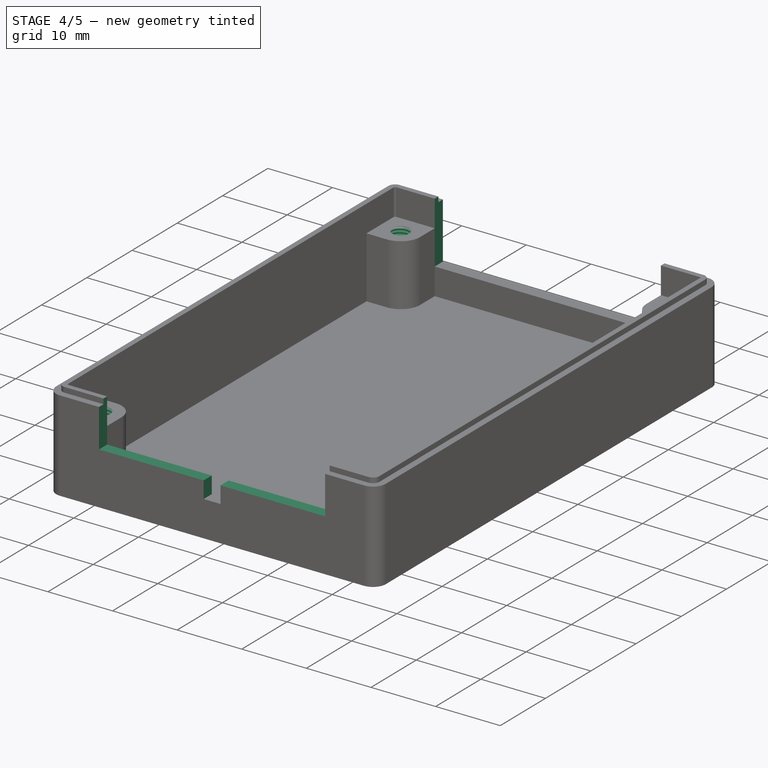
[diagram: stage 4 of 5 — iso view after this stage's code; geometry added in this stage tinted green]
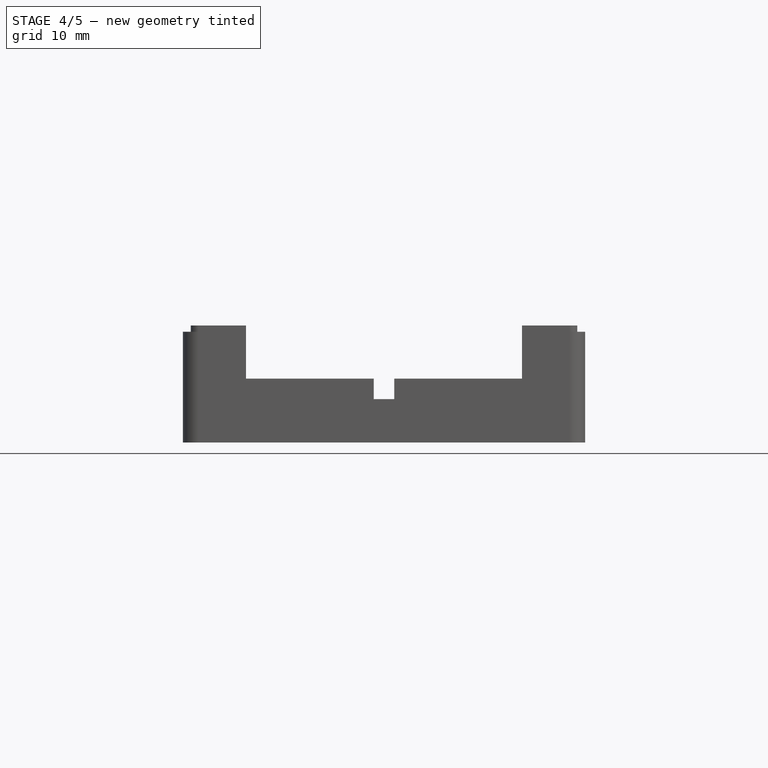
[diagram: stage 4 of 5 — front view after this stage's code; geometry added in this stage tinted green]
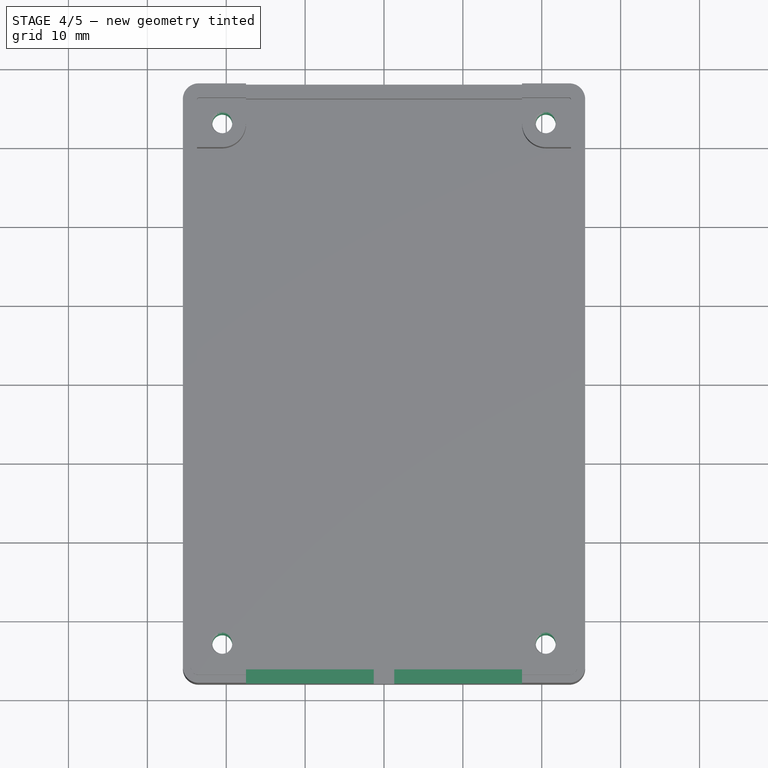
[diagram: stage 4 of 5 — top view after this stage's code; geometry added in this stage tinted green]
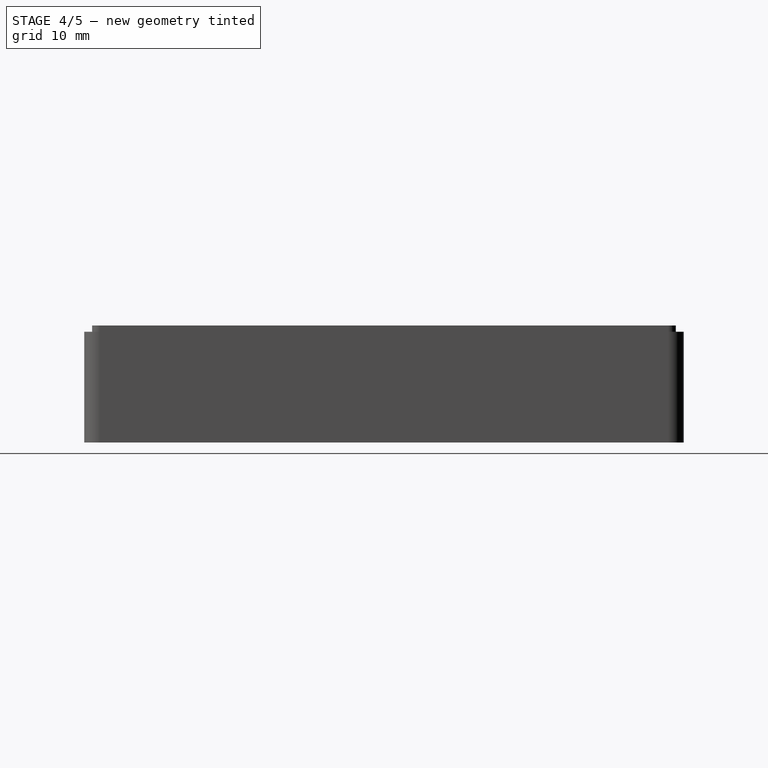
[diagram: stage 4 of 5 — right view after this stage's code; geometry added in this stage tinted green]
FEATURE [Sketcher::SketchObject] Sketch008
  ArcFitTolerance = 1e-06
  AttachmentSupport = -> [Pocket001]
  ExternalGeometry = -> [Pocket001]
  FullyConstrained = false
  MakeInternals = false
  MapMode = 5
  Placement = pos=(0,-38,0) rot=(1,0,0;1.5708rad)
  sketch-geometry (22):
    g0: LineSegment [constr] StartX=-25.5 StartY=0 StartZ=0 EndX=-17.5 EndY=0 EndZ=0
    g1: LineSegment [constr] StartX=-17.5 StartY=0 StartZ=0 EndX=-17.5 EndY=10.7 EndZ=0
    g2: LineSegment [constr] StartX=-17.5 StartY=10.7 StartZ=0 EndX=-25.5 EndY=10.7 EndZ=0
    g3: LineSegment [constr] StartX=-25.5 StartY=10.7 StartZ=0 EndX=-25.5 EndY=0 EndZ=0
    g4: LineSegment [constr] StartX=25.5 StartY=0 StartZ=0 EndX=17.5 EndY=0 EndZ=0
    g5: LineSegment [constr] StartX=17.5 StartY=0 StartZ=0 EndX=17.5 EndY=10.7 EndZ=0
    g6: LineSegment [constr] StartX=17.5 StartY=10.7 StartZ=0 EndX=25.5 EndY=10.7 EndZ=0
    g7: LineSegment [constr] StartX=25.5 StartY=10.7 StartZ=0 EndX=25.5 EndY=0 EndZ=0
    g8: LineSegment StartX=-17.5 StartY=10.7 StartZ=0 EndX=-17.5 EndY=8.1 EndZ=0
    g9: LineSegment StartX=-17.5 StartY=8.1 StartZ=0 EndX=17.5 EndY=8.1 EndZ=0
    g10: LineSegment StartX=17.5 StartY=8.1 StartZ=0 EndX=17.5 EndY=10.7 EndZ=0
    g11: LineSegment StartX=17.5 StartY=10.7 StartZ=0 EndX=-17.5 EndY=10.7 EndZ=0
    g12: GeomPoint [constr] X=0 Y=8.1 Z=0
    g13: LineSegment StartX=-1.3 StartY=5.5 StartZ=0 EndX=1.3 EndY=5.5 EndZ=0
    g14: LineSegment StartX=1.3 StartY=5.5 StartZ=0 EndX=1.3 EndY=10.7 EndZ=0
    g15: LineSegment StartX=1.3 StartY=10.7 StartZ=0 EndX=-1.3 EndY=10.7 EndZ=0
    g16: LineSegment StartX=-1.3 StartY=10.7 StartZ=0 EndX=-1.3 EndY=5.5 EndZ=0
    g17: GeomPoint [constr] X=0 Y=8.1 Z=0
    g18: LineSegment StartX=-17.5 StartY=10.7 StartZ=0 EndX=17.5 EndY=10.7 EndZ=0
    g19: LineSegment StartX=17.5 StartY=10.7 StartZ=0 EndX=17.5 EndY=14.84 EndZ=0
    g20: LineSegment StartX=17.5 StartY=14.84 StartZ=0 EndX=-17.5 EndY=14.84 EndZ=0
    g21: LineSegment StartX=-17.5 StartY=14.84 StartZ=0 EndX=-17.5 EndY=10.7 EndZ=0
  constraints (54):
    c: Coincident(g0,g1)
    c: Coincident(g1,g2)
    c: Coincident(g2,g3)
    c: Coincident(g3,g0)
    c: Horizontal(g0)
    c: Horizontal(g2)
    c: Vertical(g1)
    c: Vertical(g3)
    c: Distance(g1,g3) = 8
    c: Distance(g0,g2) = 10.7
    c: Coincident(g0,g-3)
    c: Coincident(g4,g5)
    c: Coincident(g5,g6)
    c: Coincident(g6,g7)
    c: Coincident(g7,g4)
    c: Horizontal(g4)
    c: Horizontal(g6)
    c: Vertical(g5)
    c: Vertical(g7)
    c: Distance(g5,g7) = 8
    c: Distance(g4,g6) = 10.7
    c: Coincident(g8,g9)
    c: Coincident(g9,g10)
    c: Coincident(g10,g11)
    c: Coincident(g11,g8)
    c: Vertical(g8)
    c: Vertical(g10)
    c: Horizontal(g9)
    c: Horizontal(g11)
    c: Distance(g9,g11) = 2.6
    c: Coincident(g8,g1)
    c: PointOnObject(g9,g5)
    c: Symmetric(g9,g9,g12)
    c: Coincident(g13,g14)
    c: Coincident(g14,g15)
    c: Coincident(g15,g16)
    c: Coincident(g16,g13)
    c: Horizontal(g13)
    c: Horizontal(g15)
    c: Vertical(g14)
    c: Vertical(g16)
    c: Symmetric(g15,g13,g17)
    c: Distance(g14,g16) = 2.6
    c: Coincident(g18,g19)
    c: Coincident(g19,g20)
    c: Coincident(g20,g21)
    c: Coincident(g21,g18)
    c: Horizontal(g18)
    c: Horizontal(g20)
    c: Vertical(g19)
    c: Vertical(g21)
    c: Distance(g19,g21) = 35
    c: Coincident(g18,g1)
    c: PointOnObject(g19,g-7)
FEATURE [PartDesign::Pocket] Pocket002
  BaseFeature = -> Pocket001
  Direction = (0,1,-2e-16)
  Length = 2
  Length2 = 5
  Profile = -> Sketch008
  ReferenceAxis = -> Sketch008 [N_Axis]
  Refine = true
  Suppressed = false
  Type = 0
FEATURE [Sketcher::SketchObject] Sketch009
  ArcFitTolerance = 1e-06
  AttachmentSupport = -> [Pocket002]
  ExternalGeometry = -> [Pocket002]
  FullyConstrained = true
  MakeInternals = false
  MapMode = 5
  Placement = pos=(0,38,0) rot=(0,0.707107,0.707107;3.14159rad)
  sketch-geometry (16):
    g0: LineSegment [constr] StartX=-25.5 StartY=0 StartZ=0 EndX=-17.5 EndY=0 EndZ=0
    g1: LineSegment [constr] StartX=-17.5 StartY=0 StartZ=0 EndX=-17.5 EndY=10.7 EndZ=0
    g2: LineSegment [constr] StartX=-17.5 StartY=10.7 StartZ=0 EndX=-25.5 EndY=10.7 EndZ=0
    g3: LineSegment [constr] StartX=-25.5 StartY=10.7 StartZ=0 EndX=-25.5 EndY=0 EndZ=0
    g4: LineSegment [constr] StartX=25.5 StartY=0 StartZ=0 EndX=25.5 EndY=10.7 EndZ=0
    g5: LineSegment [constr] StartX=25.5 StartY=10.7 StartZ=0 EndX=17.5 EndY=10.7 EndZ=0
    g6: LineSegment [constr] StartX=17.5 StartY=10.7 StartZ=0 EndX=17.5 EndY=0 EndZ=0
    g7: LineSegment [constr] StartX=17.5 StartY=0 StartZ=0 EndX=25.5 EndY=0 EndZ=0
    g8: LineSegment StartX=-17.5 StartY=10.7 StartZ=0 EndX=-17.5 EndY=5.35 EndZ=0
    g9: LineSegment StartX=-17.5 StartY=5.35 StartZ=0 EndX=17.5 EndY=5.35 EndZ=0
    g10: LineSegment StartX=17.5 StartY=5.35 StartZ=0 EndX=17.5 EndY=10.7 EndZ=0
    g11: LineSegment StartX=17.5 StartY=10.7 StartZ=0 EndX=-17.5 EndY=10.7 EndZ=0
    g12: LineSegment StartX=-17.5 StartY=10.7 StartZ=0 EndX=17.5 EndY=10.7 EndZ=0
    g13: LineSegment StartX=17.5 StartY=10.7 StartZ=0 EndX=17.5 EndY=14.84 EndZ=0
    g14: LineSegment StartX=17.5 StartY=14.84 StartZ=0 EndX=-17.5 EndY=14.84 EndZ=0
    g15: LineSegment StartX=-17.5 StartY=14.84 StartZ=0 EndX=-17.5 EndY=10.7 EndZ=0
  constraints (43):
    c: Coincident(g0,g1)
    c: Coincident(g1,g2)
    c: Coincident(g2,g3)
    c: Coincident(g3,g0)
    c: Horizontal(g0)
    c: Horizontal(g2)
    c: Vertical(g1)
    c: Vertical(g3)
    c: Distance(g1,g3) = 8
    c: Distance(g0,g2) = 10.7
    c: Coincident(g0,g-3)
    c: Coincident(g4,g5)
    c: Coincident(g5,g6)
    c: Coincident(g6,g7)
    c: Coincident(g7,g4)
    c: Vertical(g4)
    c: Vertical(g6)
    c: Horizontal(g5)
    c: Horizontal(g7)
    c: Distance(g4,g6) = 8
    c: Distance(g5,g7) = 10.7
    c: Coincident(g4,g-5)
    c: Coincident(g8,g9)
    c: Coincident(g9,g10)
    c: Coincident(g10,g11)
    c: Coincident(g11,g8)
    c: Vertical(g8)
    c: Vertical(g10)
    c: Horizontal(g9)
    c: Horizontal(g11)
    c: Coincident(g8,g1)
    c: Symmetric(g6,g6,g9)
    c: Coincident(g12,g13)
    c: Coincident(g13,g14)
    c: Coincident(g14,g15)
    c: Coincident(g15,g12)
    c: Horizontal(g12)
    c: Horizontal(g14)
    c: Vertical(g13)
    c: Vertical(g15)
    c: Distance(g13,g15) = 35
    c: Coincident(g12,g1)
    c: PointOnObject(g13,g-4)
FEATURE [PartDesign::Pocket] Pocket003
  BaseFeature = -> Pocket002
  Direction = (0,-1,2e-16)
  Length = 2
  Length2 = 5
  Profile = -> Sketch009
  ReferenceAxis = -> Sketch009 [N_Axis]
  Refine = true
  Suppressed = false
  Type = 0
FEATURE [Sketcher::SketchObject] Sketch010
  ArcFitTolerance = 1e-06
  AttachmentSupport = -> [Pocket003]
  FullyConstrained = false
  MakeInternals = false
  MapMode = 5
  Placement = pos=(0,0,0) rot=(1,0,0;3.14159rad)
  sketch-geometry (9):
    g0: LineSegment [constr] StartX=-20.5 StartY=-33 StartZ=0 EndX=20.5 EndY=-33 EndZ=0
    g1: LineSegment [constr] StartX=20.5 StartY=-33 StartZ=0 EndX=20.5 EndY=33 EndZ=0
    g2: LineSegment [constr] StartX=20.5 StartY=33 StartZ=0 EndX=-20.5 EndY=33 EndZ=0
    g3: LineSegment [constr] StartX=-20.5 StartY=33 StartZ=0 EndX=-20.5 EndY=-33 EndZ=0
    g4: GeomPoint [constr] X=0 Y=0 Z=0
    g5: Circle CenterX=-20.5 CenterY=33 CenterZ=0 NormalX=0 NormalY=0 NormalZ=1 AngleXU=0 Radius=1.25
    g6: Circle CenterX=20.5 CenterY=33 CenterZ=0 NormalX=0 NormalY=0 NormalZ=1 AngleXU=0 Radius=1.25
    g7: Circle CenterX=-20.5 CenterY=-33 CenterZ=0 NormalX=0 NormalY=0 NormalZ=1 AngleXU=0 Radius=1.25
    g8: Circle CenterX=20.5 CenterY=-33 CenterZ=0 NormalX=0 NormalY=0 NormalZ=1 AngleXU=0 Radius=1.25
  constraints (17):
    c: Coincident(g0,g1)
    c: Coincident(g1,g2)
    c: Coincident(g2,g3)
    c: Coincident(g3,g0)
    c: Horizontal(g0)
    c: Horizontal(g2)
    c: Vertical(g1)
    c: Vertical(g3)
    c: Symmetric(g2,g0,g4)
    c: Distance(g1,g3) = 41
    c: Distance(g0,g2) = 66
    c: Coincident(g4,g-1)
    c: Diameter(g5) = 2.5
    c: Coincident(g5,g2)
    c: Diameter(g6) = 2.5
    c: Diameter(g7) = 2.5
    c: Diameter(g8) = 2.5
FEATURE [PartDesign::Hole] Hole001
  BaseFeature = -> Pocket003
  CustomThreadClearance = 0
  Depth = 25
  DepthType = 0
  Diameter = 2.52
  DrillForDepth = false
  DrillPoint = 1
  DrillPointAngle = 118
  HoleCutCountersinkAngle = 90
  HoleCutCustomValues = false
  HoleCutDepth = 0
  HoleCutDiameter = 6.1
  HoleCutType = 0
  ModelThread = true
  Profile = -> Sketch010
  Refine = true
  Suppressed = false
  Tapered = false
  TaperedAngle = 90
  ThreadClass = 0
  ThreadDepth = 25
  ThreadDepthType = 0
  ThreadDirection = 0
  ThreadFit = 0
  ThreadSize = 9
  ThreadType = 1
  Threaded = true
  UseCustomThreadClearance = false
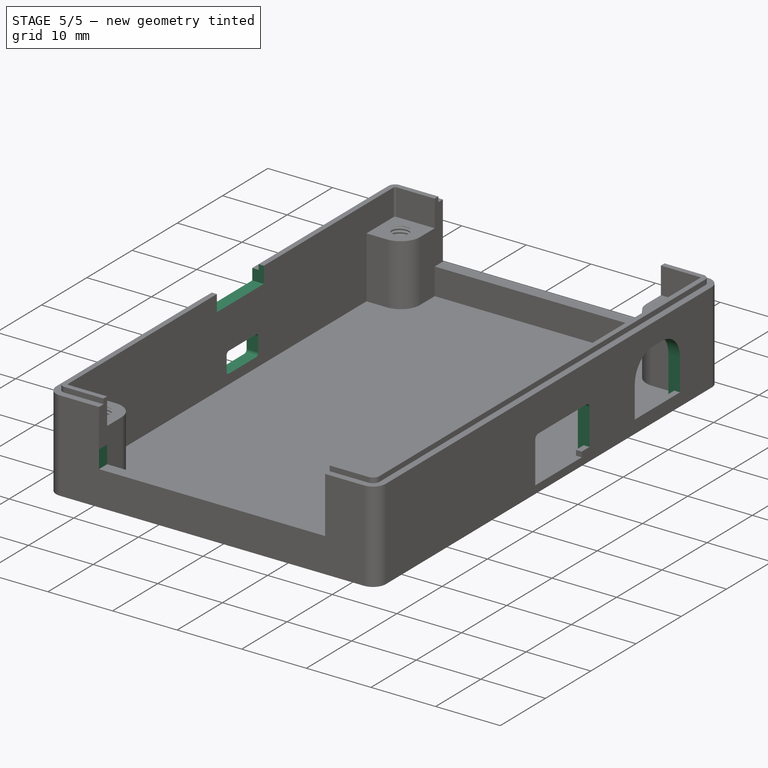
[diagram: stage 5 of 5 — iso view after this stage's code; geometry added in this stage tinted green]
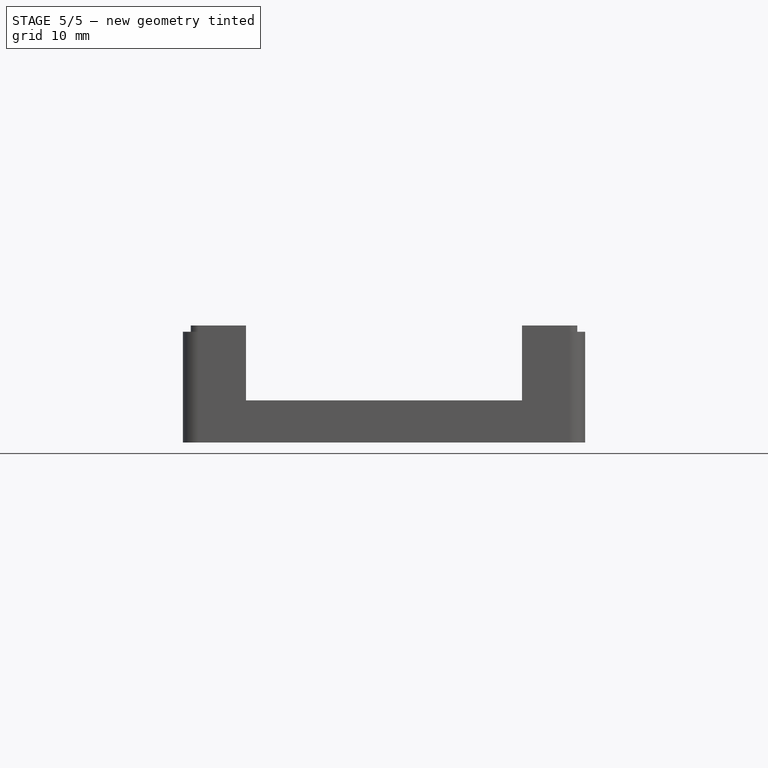
[diagram: stage 5 of 5 — front view after this stage's code; geometry added in this stage tinted green]
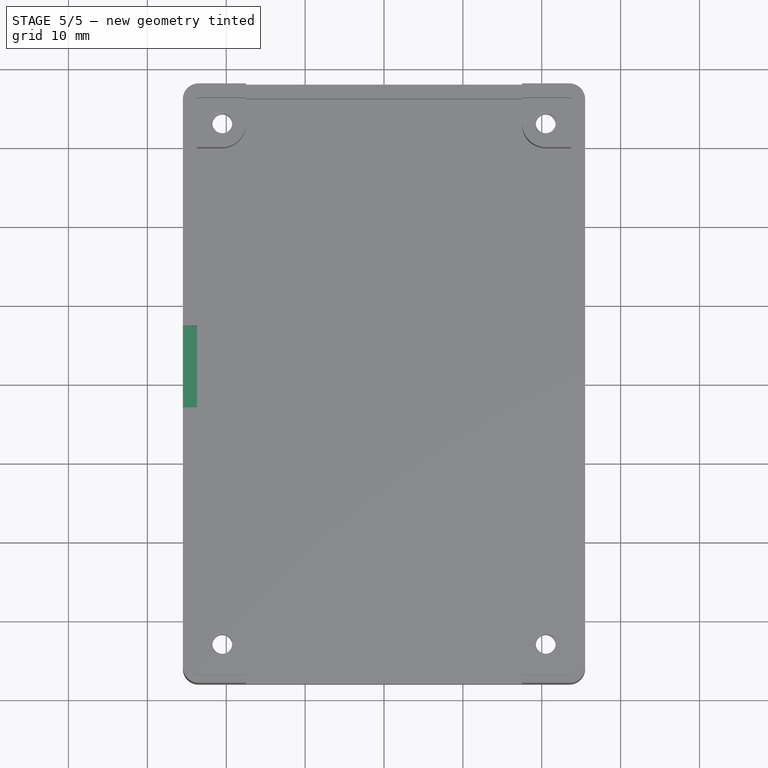
[diagram: stage 5 of 5 — top view after this stage's code; geometry added in this stage tinted green]
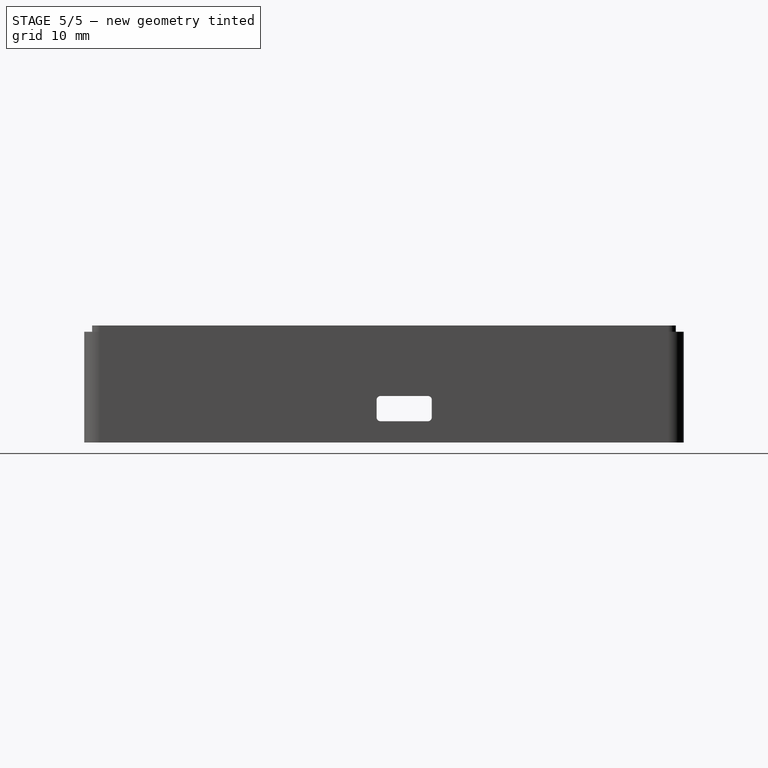
[diagram: stage 5 of 5 — right view after this stage's code; geometry added in this stage tinted green]
FEATURE [Sketcher::SketchObject] Sketch011
  ArcFitTolerance = 1e-06
  AttachmentSupport = -> [Hole001]
  FullyConstrained = false
  MakeInternals = false
  MapMode = 5
  Placement = pos=(25.5,0,0) rot=(0.57735,0.57735,0.57735;2.0944rad)
  sketch-geometry (42):
    g0: LineSegment [constr] StartX=-35.5771 StartY=-1.48681 StartZ=0 EndX=36.4229 EndY=-1.48681 EndZ=0
    g1: LineSegment [constr] StartX=36.4229 StartY=-1.48681 StartZ=0 EndX=36.4229 EndY=0.113192 EndZ=0
    g2: LineSegment [constr] StartX=36.4229 StartY=0.113192 StartZ=0 EndX=-35.5771 EndY=0.113192 EndZ=0
    g3: LineSegment [constr] StartX=-35.5771 StartY=0.113192 StartZ=0 EndX=-35.5771 EndY=-1.48681 EndZ=0
    g4: LineSegment [constr] StartX=36.4229 StartY=0.113192 StartZ=0 EndX=36.4229 EndY=1.71319 EndZ=0
    g5: LineSegment [constr] StartX=36.4229 StartY=1.71319 StartZ=0 EndX=29.4229 EndY=1.71319 EndZ=0
    g6: LineSegment [constr] StartX=29.4229 StartY=1.71319 StartZ=0 EndX=29.4229 EndY=0.113192 EndZ=0
    g7: LineSegment [constr] StartX=29.4229 StartY=0.113192 StartZ=0 EndX=36.4229 EndY=0.113192 EndZ=0
    g8: LineSegment StartX=29.0082 StartY=0 StartZ=0 EndX=29.0082 EndY=6.82886 EndZ=0
    g9: LineSegment StartX=25.1371 StartY=10.7 StartZ=0 EndX=22.8706 EndY=10.7 EndZ=0
    g10: LineSegment StartX=19.0082 StartY=6.83762 StartZ=0 EndX=19.0082 EndY=0 EndZ=0
    g11: LineSegment StartX=19.0082 StartY=0 StartZ=0 EndX=29.0082 EndY=0 EndZ=0
    g12: LineSegment [constr] StartX=36.4229 StartY=-0.686808 StartZ=0 EndX=36.4229 EndY=10.0132 EndZ=0
    g13: LineSegment [constr] StartX=36.4229 StartY=10.0132 StartZ=0 EndX=18.1229 EndY=10.0132 EndZ=0
    g14: LineSegment [constr] StartX=18.1229 StartY=10.0132 StartZ=0 EndX=18.1229 EndY=-0.686808 EndZ=0
    g15: LineSegment [constr] StartX=18.1229 StartY=-0.686808 StartZ=0 EndX=36.4229 EndY=-0.686808 EndZ=0
    g16: LineSegment [constr] StartX=36.4229 StartY=-0.686808 StartZ=0 EndX=36.4229 EndY=2.81319 EndZ=0
    g17: LineSegment [constr] StartX=36.4229 StartY=2.81319 StartZ=0 EndX=2.93009 EndY=2.81319 EndZ=0
    g18: LineSegment [constr] StartX=2.5 StartY=-0.686808 StartZ=0 EndX=36.4229 EndY=-0.686808 EndZ=0
    g19: GeomPoint [constr] X=3 Y=2.81319 Z=0
    g20: GeomPoint [constr] X=2.93009 Y=2.81319 Z=0
    g21: LineSegment [constr] StartX=18.1229 StartY=10.0132 StartZ=0 EndX=19.0082 EndY=10.0132 EndZ=0
    g22: LineSegment [constr] StartX=19.0082 StartY=10.0132 StartZ=0 EndX=19.0082 EndY=10.7 EndZ=0
    g23: LineSegment [constr] StartX=19.0082 StartY=10.7 StartZ=0 EndX=18.1229 EndY=10.7 EndZ=0
    g24: LineSegment [constr] StartX=18.1229 StartY=10.7 StartZ=0 EndX=18.1229 EndY=10.0132 EndZ=0
    g25: LineSegment [constr] StartX=15.5229 StartY=10.7 StartZ=0 EndX=-4.47706 EndY=10.7 EndZ=0
    g26: LineSegment [constr] StartX=-4.47706 StartY=10.7 StartZ=0 EndX=-4.47706 EndY=8.2 EndZ=0
    g27: LineSegment [constr] StartX=-4.47706 StartY=8.2 StartZ=0 EndX=15.5229 EndY=8.2 EndZ=0
    g28: LineSegment [constr] StartX=15.5229 StartY=8.2 StartZ=0 EndX=15.5229 EndY=10.7 EndZ=0
    g29: LineSegment StartX=-3 StartY=-2.57362 StartZ=0 EndX=9 EndY=-2.57362 EndZ=0
    g30: LineSegment StartX=9 StartY=-2.57362 StartZ=0 EndX=9 EndY=7.5 EndZ=0
    g31: LineSegment StartX=8.3 StartY=8.2 StartZ=0 EndX=-2.3 EndY=8.2 EndZ=0
    g32: LineSegment StartX=-3 StartY=7.5 StartZ=0 EndX=-3 EndY=-2.57362 EndZ=0
    g33: GeomPoint [constr] X=3 Y=2.81319 Z=0
    g34: ArcOfCircle CenterX=8.3 CenterY=7.5 CenterZ=0 NormalX=0 NormalY=0 NormalZ=1 AngleXU=0 Radius=0.7 StartAngle=0 EndAngle=1.5708
    g35: GeomPoint [constr] X=9 Y=8.2 Z=0
    g36: ArcOfCircle CenterX=-2.3 CenterY=7.5 CenterZ=0 NormalX=0 NormalY=0 NormalZ=1 AngleXU=0 Radius=0.7 StartAngle=1.5708 EndAngle=3.14159
    g37: GeomPoint [constr] X=-3 Y=8.2 Z=0
    g38: ArcOfCircle CenterX=25.1371 CenterY=6.82886 CenterZ=0 NormalX=0 NormalY=0 NormalZ=1 AngleXU=0 Radius=3.87114 StartAngle=0 EndAngle=1.5708
    g39: GeomPoint [constr] X=29.0082 Y=10.7 Z=0
    g40: ArcOfCircle CenterX=22.8706 CenterY=6.83762 CenterZ=0 NormalX=0 NormalY=0 NormalZ=1 AngleXU=0 Radius=3.86238 StartAngle=1.5708 EndAngle=3.14159
    g41: GeomPoint [constr] X=19.0082 Y=10.7 Z=0
  constraints (94):
    c: Coincident(g0,g1)
    c: Coincident(g1,g2)
    c: Coincident(g2,g3)
    c: Coincident(g3,g0)
    c: Horizontal(g0)
    c: Horizontal(g2)
    c: Vertical(g1)
    c: Vertical(g3)
    c: Distance(g1,g3) = 72
    c: Distance(g0,g2) = 1.6
    c: Coincident(g4,g5)
    c: Coincident(g5,g6)
    c: Coincident(g6,g7)
    c: Coincident(g7,g4)
    c: Vertical(g4)
    c: Vertical(g6)
    c: Horizontal(g5)
    c: Horizontal(g7)
    c: Distance(g4,g6) = 7
    c: Distance(g5,g7) = 1.6
    c: Coincident(g4,g1)
    c: Coincident(g10,g11)
    c: Coincident(g11,g8)
    c: Vertical(g8)
    c: Vertical(g10)
    c: Horizontal(g9)
    c: Horizontal(g11)
    c: Distance(g8,g10) = 10
    c: Distance(g39,g11) = 10.7
    c: PointOnObject(g8,g-1)
    c: Coincident(g12,g13)
    c: Coincident(g14,g15)
    c: Coincident(g15,g12)
    c: Vertical(g12)
    c: Vertical(g14)
    c: Horizontal(g13)
    c: Horizontal(g15)
    c: Distance(g12,g14) = 18.3
    c: Distance(g13,g15) = 10.7
    c: Symmetric(g1,g1,g12)
    c: Coincident(g16,g17)
    c: Coincident(g18,g16)
    c: Vertical(g16)
    c: Horizontal(g17)
    c: Horizontal(g18)
    c: Distance(g17,g18) = 3.5
    c: Coincident(g16,g12)
    c: Coincident(g20,g17)
    c: Coincident(g21,g22)
    c: Coincident(g22,g23)
    c: Coincident(g23,g24)
    c: Horizontal(g21)
    c: Horizontal(g23)
    c: Vertical(g22)
    c: Vertical(g24)
    c: Coincident(g22,g41)
    c: Distance(g25,g23) = 2.6
    c: Coincident(g25,g26)
    c: Coincident(g26,g27)
    c: Coincident(g27,g28)
    c: Coincident(g28,g25)
    c: Horizontal(g25)
    c: Horizontal(g27)
    c: Vertical(g26)
    c: Vertical(g28)
    c: Distance(g26,g28) = 20
    c: Distance(g25,g27) = 2.5
    c: Coincident(g29,g30)
    c: Coincident(g32,g29)
    c: Horizontal(g29)
    c: Horizontal(g31)
    c: Vertical(g30)
    c: Vertical(g32)
    c: Symmetric(g35,g29,g33)
    c: Distance(g30,g32) = 12
    c: Coincident(g33,g19)
    c: PointOnObject(g35,g27)
    c: PointOnObject(g35,g30)
    c: PointOnObject(g35,g31)
    c: Tangent(g30,g34) = -1.5708
    c: Tangent(g31,g34) = -1.5708
    c: PointOnObject(g37,g32)
    c: PointOnObject(g37,g31)
    c: Tangent(g32,g36) = -1.5708
    c: Tangent(g31,g36) = -1.5708
    c: PointOnObject(g39,g8)
    c: PointOnObject(g39,g9)
    c: Tangent(g8,g38) = -1.5708
    c: Tangent(g9,g38) = -1.5708
    c: PointOnObject(g41,g10)
    c: PointOnObject(g41,g9)
    c: Tangent(g10,g40) = -1.5708
    c: Tangent(g9,g40) = -1.5708
    c: DistanceX(g10) = 19.0082
FEATURE [PartDesign::Pocket] Pocket004
  BaseFeature = -> Hole001
  Direction = (-1,0,0)
  Length = 2
  Length2 = 5
  Profile = -> Sketch011
  ReferenceAxis = -> Sketch011 [N_Axis]
  Refine = true
  Suppressed = false
  Type = 0
FEATURE [PartDesign::Pocket] Pocket005
  BaseFeature = -> Pocket004
  Direction = (0,-1,2e-16)
  Length = 100
  Length2 = 5
  Profile = -> Sketch009
  ReferenceAxis = -> Sketch009 [N_Axis]
  Refine = true
  Suppressed = false
  Type = 0
FEATURE [Sketcher::SketchObject] Sketch012
  ArcFitTolerance = 1e-06
  AttachmentSupport = -> [Pocket005]
  ExternalGeometry = -> [Pocket005]
  FullyConstrained = false
  MakeInternals = false
  MapMode = 5
  Placement = pos=(-25.5,0,0) rot=(0.57735,-0.57735,-0.57735;2.0944rad)
  sketch-geometry (20):
    g0: GeomPoint [constr] X=0 Y=14.84 Z=0
    g1: GeomPoint [constr] X=-7.29 Y=14.84 Z=0
    g2: GeomPoint [constr] X=3.09 Y=14.84 Z=0
    g3: LineSegment StartX=-7.29 StartY=14.84 StartZ=0 EndX=-7.29 EndY=12.3 EndZ=0
    g4: LineSegment StartX=-7.29 StartY=12.3 StartZ=0 EndX=3.09 EndY=12.3 EndZ=0
    g5: LineSegment StartX=3.09 StartY=12.3 StartZ=0 EndX=3.09 EndY=14.84 EndZ=0
    g6: LineSegment StartX=3.09 StartY=14.84 StartZ=0 EndX=-7.29 EndY=14.84 EndZ=0
    g7: GeomPoint [constr] X=-2.56 Y=0 Z=0
    g8: LineSegment [constr] StartX=-2.56 StartY=0 StartZ=0 EndX=-2.56 EndY=15.0592 EndZ=0
    g9: GeomPoint [constr] X=-2.56 Y=4.3 Z=0
    g10: LineSegment StartX=-5.56 StartY=2.7 StartZ=0 EndX=0.44 EndY=2.7 EndZ=0
    g11: LineSegment StartX=0.94 StartY=3.2 StartZ=0 EndX=0.94 EndY=5.4 EndZ=0
    g12: LineSegment StartX=0.44 StartY=5.9 StartZ=0 EndX=-5.56 EndY=5.9 EndZ=0
    g13: LineSegment StartX=-6.06 StartY=5.4 StartZ=0 EndX=-6.06 EndY=3.2 EndZ=0
    g14: ArcOfCircle CenterX=-5.56 CenterY=3.2 CenterZ=0 NormalX=0 NormalY=0 NormalZ=1 AngleXU=0 Radius=0.5 StartAngle=3.14159 EndAngle=4.71239
    g15: ArcOfCircle CenterX=0.44 CenterY=3.2 CenterZ=0 NormalX=0 NormalY=0 NormalZ=1 AngleXU=0 Radius=0.5 StartAngle=4.71239 EndAngle=6.28319
    g16: ArcOfCircle CenterX=0.44 CenterY=5.4 CenterZ=0 NormalX=0 NormalY=0 NormalZ=1 AngleXU=0 Radius=0.5 StartAngle=0 EndAngle=1.5708
    g17: ArcOfCircle CenterX=-5.56 CenterY=5.4 CenterZ=0 NormalX=0 NormalY=0 NormalZ=1 AngleXU=0 Radius=0.5 StartAngle=1.5708 EndAngle=3.14159
    g18: GeomPoint [constr] X=0.94 Y=5.9 Z=0
    g19: GeomPoint [constr] X=-2.56 Y=4.3 Z=0
  constraints (42):
    c: Symmetric(g-3,g-3,g0)
    c: PointOnObject(g1,g-3)
    c: DistanceX(g-3,g1) = 28.71
    c: PointOnObject(g2,g-3)
    c: DistanceX(g-3,g2) = 39.09
    c: Coincident(g3,g4)
    c: Coincident(g4,g5)
    c: Coincident(g5,g6)
    c: Coincident(g6,g3)
    c: Vertical(g3)
    c: Vertical(g5)
    c: Horizontal(g4)
    c: Horizontal(g6)
    c: Distance(g3,g5) = 10.38
    c: Distance(g4,g6) = 2.54
    c: Coincident(g3,g1)
    c: PointOnObject(g7,g-1)
    c: DistanceX(g-3,g7) = 33.44
    c: PointOnObject(g9,g8)
    c: DistanceY(g9,g3) = 8
    c: Tangent(g10,g14) = -1.5708
    c: Tangent(g10,g15) = -1.5708
    c: Tangent(g11,g15) = -1.5708
    c: Tangent(g11,g16) = -1.5708
    c: Tangent(g12,g16) = -1.5708
    c: Tangent(g12,g17) = -1.5708
    c: Tangent(g13,g17) = -1.5708
    c: Tangent(g13,g14) = -1.5708
    c: Horizontal(g10)
    c: Horizontal(g12)
    c: Vertical(g11)
    c: Vertical(g13)
    c: Equal(g14,g15)
    c: Equal(g15,g16)
    c: Equal(g16,g17)
    c: Symmetric(g12,g10,g19)
    c: PointOnObject(g18,g11)
    c: PointOnObject(g18,g12)
    c: Distance(g11,g13) = 7
    c: Distance(g10,g12) = 3.2
    c: Radius(g15) = 0.5
    c: Coincident(g19,g9)
FEATURE [PartDesign::Pocket] Pocket006
  BaseFeature = -> Pocket005
  Direction = (1,0,0)
  Length = 5
  Length2 = 5
  Profile = -> Sketch012
  ReferenceAxis = -> Sketch012 [N_Axis]
  Refine = true
  Suppressed = false
  Type = 0
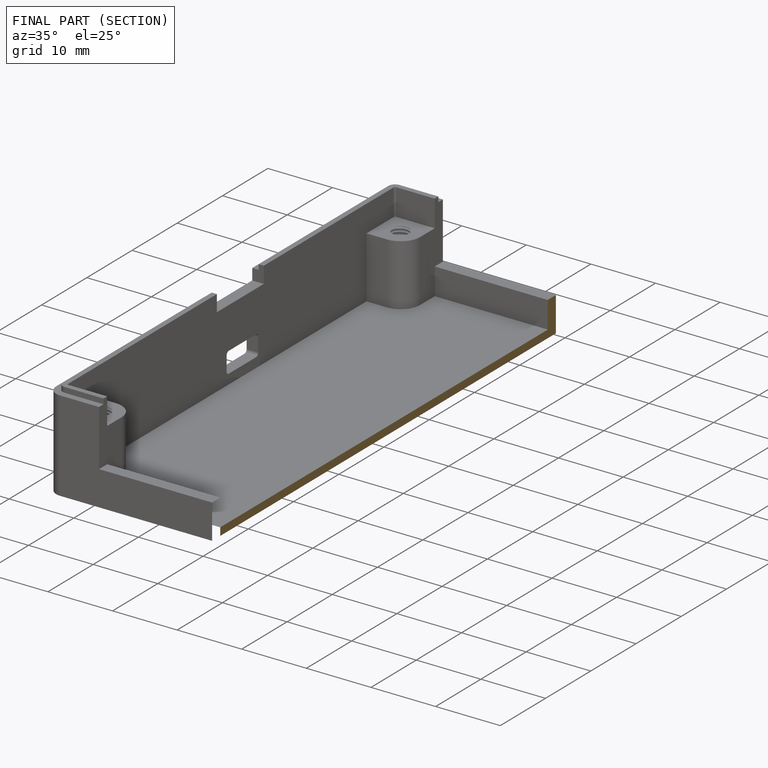
[diagram: finished part — half-section view (interior)]
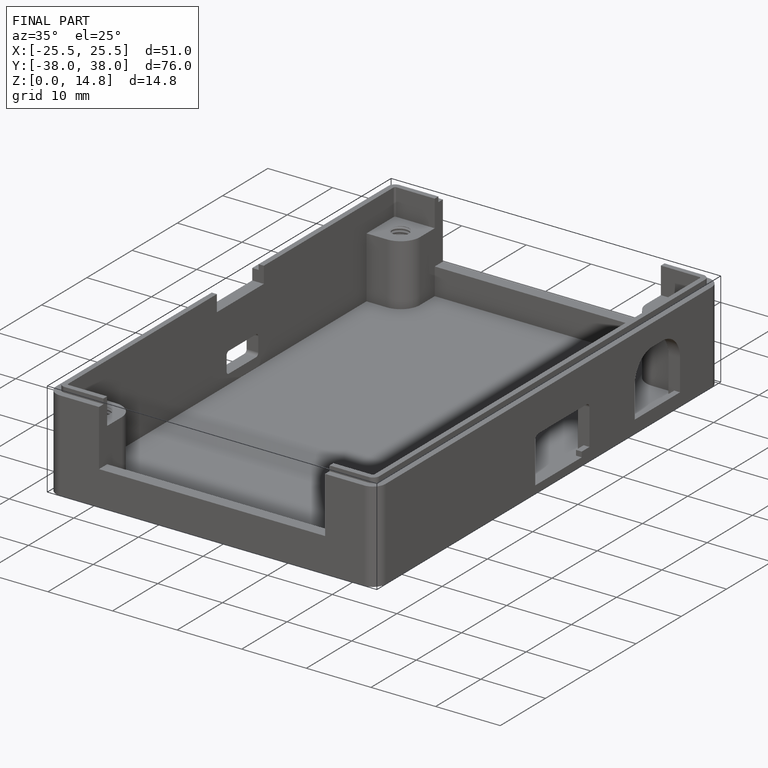
[diagram: finished part — iso view with bounding-box wireframe]
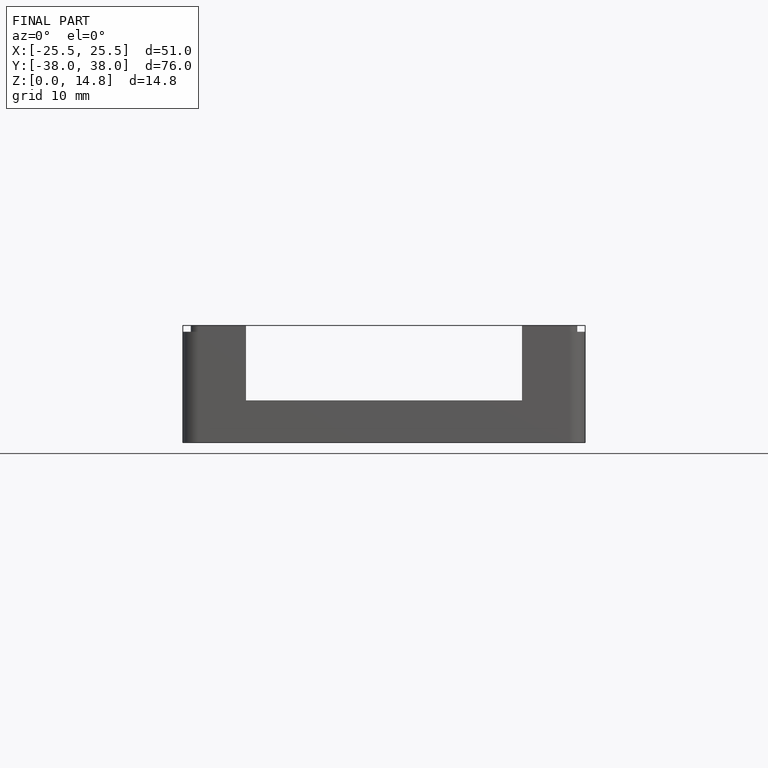
[diagram: finished part — front view with bounding-box wireframe]
